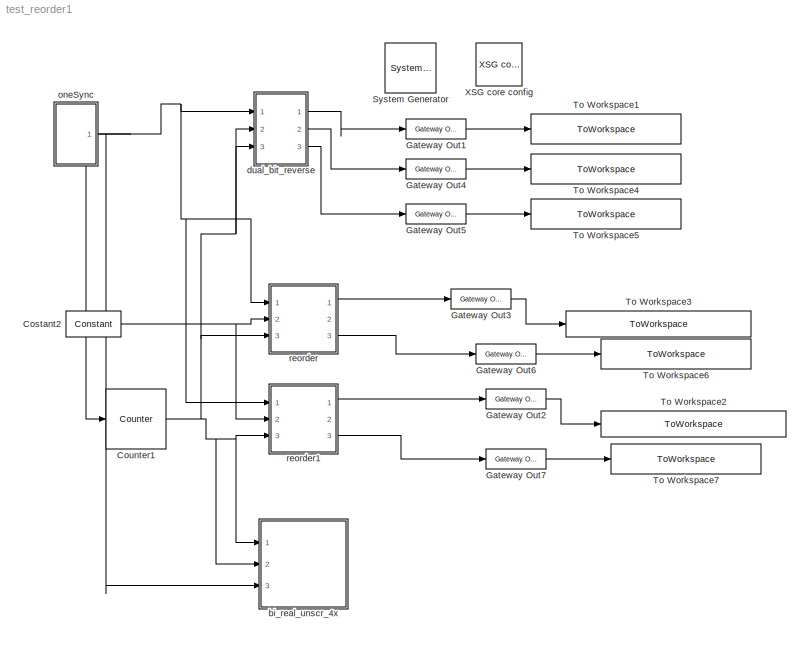
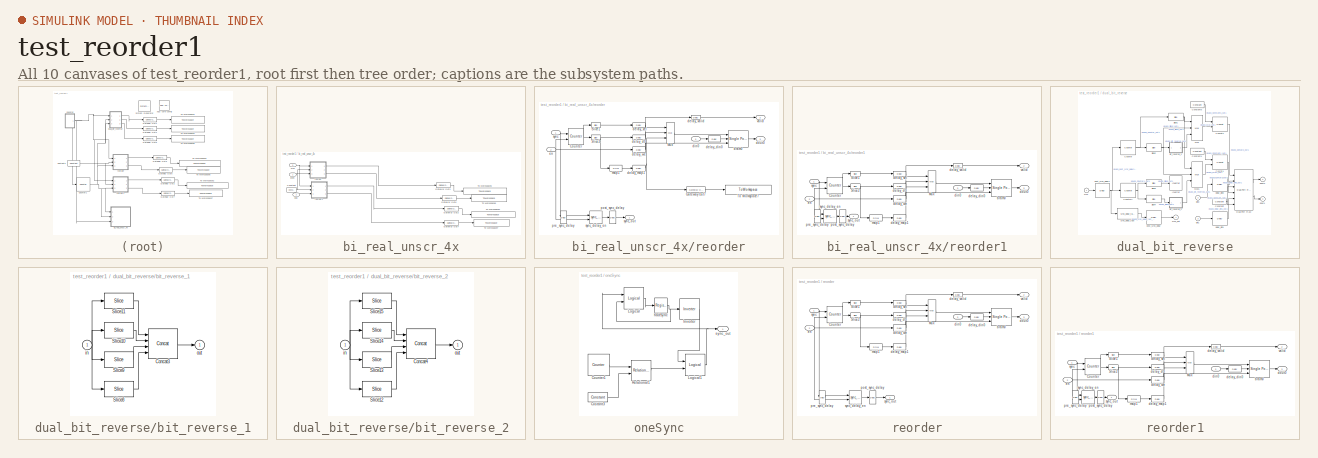
[diagram: thumbnail index - all 10 canvases of the model, root first then tree order]
MODEL test_reorder1
KIND model
BLOCK [Reference]  System Generator  REF=xbsIndex_r4/ System Generator
  AttributesFormatString = System\\nGenerator
  FunctionWithSeparateData = off
  GeneratePreprocessorConditionals = off
  Ports = []
  RTWMemSecDataConstants = Inherit from model
  RTWMemSecDataInternal = Inherit from model
  RTWMemSecDataParameters = Inherit from model
  RTWMemSecFuncExecute = Inherit from model
  RTWMemSecFuncInitTerm = Inherit from model
  SID = 56
  ShowPortLabels = FromPortIcon
  SourceBlock = xbsIndex_r4/ System Generator
  SourceType = Xilinx System Generator Block
  SystemSampleTime = -1
  Tag = genX
  UserData = DataTag0
  UserDataPersistent = on
  block_type = sysgen
  block_version = 11.4
  clock_wrapper = Clock Enables
  core_generation = According to Block Masks
  dbl_ovrd = According to Block Masks
  dcm_input_clock_period = 100
  deprecated_control = off
  directory = ./spec_16in_extrabrams3/sysgen
  eval_field = 0
  has_advanced_control = 0
  incr_netlist = off
  infoedit = System Generator
  package = ff1136
  part = xc5vsx95t
  run_coregen = off
  sg_icon_stat = 51,50,0,0,token,white,0,58c5b5770fe5f7c311f53dbc6e73f0f6,right,,[ ],[ ]
  sg_mask_display = fprintf('','COMMENT: begin icon graphics');\npatch([0 51 51 0 0 ],[0 0 50 50 0 ],[1 1 1 ]);\npatch([1.6375 16.81 27.31 37.81 48.31 27.31 12.1375 1.6375 ],[36.655 36.655 47.155 36.655 47.155 47.155 47.155 36.655 ],[0.933333 0.203922 0.141176 ]);\npatch([12.1375 27.31 16.81 1.6375 12.1375 ],[26.155 26.155 36.655 36.655 26.155 ],[0.698039 0.0313725 0.219608 ]);\npatch([1.6375 16.81 27.31 12.1375 1.63...<+335ch>
  sggui_pos = -1,-1,-1,-1
  simulink_period = 1
  speed = -1
  synthesis_tool = XST
  sysclk_period = 2.6667
  testbench = off
  trim_vbits = Everywhere in SubSystem
  xilinxfamily = virtex5
BLOCK [Reference] Costant2  REF=xbsIndex_r4/Constant
  Ports = [0, 1]
  SID = 55
  SourceBlock = xbsIndex_r4/Constant
  SourceType = Xilinx Constant Block Block
  arith_type = Boolean
  bin_pt = 0
  block_type = constant
  block_version = 11.4
  carry = CIN
  const = 1
  dbl_ovrd = off
  dsp48_infoedit = The use of this block for DSP48 instructions is deprecated.  Please use the Opmode block.
  equ = P=C
  explicit_period = on
  has_advanced_control = 0
  inp1 = P
  inp2 = PCIN>>17
  n_bits = 32
  opr = +
  opselect = C
  period = 1
  sg_icon_stat = 55,26,0,1,white,blue,0,1c72b5be,right,,[ ],[ ]
  sg_mask_display = fprintf('','COMMENT: begin icon graphics');\npatch([0 55 55 0 0 ],[0 0 26 26 0 ],[0.77 0.82 0.91 ]);\nplot([0 55 55 0 0 ],[0 0 26 26 0 ]);\npatch([20.325 24.66 27.66 30.66 33.66 27.66 23.325 20.325 ],[16.33 16.33 19.33 16.33 19.33 19.33 19.33 16.33 ],[1 1 1 ]);\npatch([23.325 27.66 24.66 20.325 23.325 ],[13.33 13.33 16.33 16.33 13.33 ],[0.931 0.946 0.973 ]);\npatch([20.325 24.66 27.66 23.325 20.32...<+335ch>
  sggui_pos = -1,-1,-1,-1
BLOCK [Reference] Counter1  REF=xbsIndex_r4/Counter
  Ports = [1, 1]
  SID = 64
  SourceBlock = xbsIndex_r4/Counter
  SourceType = Xilinx Counter Block
  arith_type = Unsigned
  bin_pt = 0
  block_type = counter
  cnt_by_val = 1
  cnt_to = 1023
  cnt_type = Free Running
  dbl_ovrd = off
  en = off
  explicit_period = on
  has_advanced_control = 0
  implementation = Fabric
  infoedit = Hardware notes: Free running counters are the least expensive in hardware.  A count limited counter is implemented by combining a counter with a comparator.
  load_pin = off
  n_bits = 13
  operation = Up
  period = 1
  rst = on
  sg_icon_stat = 60,60,1,1,white,blue,0,803eba70,right,,[ ],[ ]
  sg_mask_display = fprintf('','COMMENT: begin icon graphics');\npatch([0 60 60 0 0 ],[0 0 60 60 0 ],[0.77 0.82 0.91 ]);\nplot([0 60 60 0 0 ],[0 0 60 60 0 ]);\npatch([12.2 23.76 31.76 39.76 47.76 31.76 20.2 12.2 ],[38.88 38.88 46.88 38.88 46.88 46.88 46.88 38.88 ],[1 1 1 ]);\npatch([20.2 31.76 23.76 12.2 20.2 ],[30.88 30.88 38.88 38.88 30.88 ],[0.931 0.946 0.973 ]);\npatch([12.2 23.76 31.76 20.2 12.2 ],[22.88 22.88 3...<+379ch>  <repeated x3 — deduplicated; at blocks: Counter1, Counter>
  sggui_pos = 19,25,419,748
  start_count = 0
  use_behavioral_HDL = off
  use_rpm = off
  xl_area = [0,0,0,0,0,0,0]
  xl_use_area = off
BLOCK [Reference] Gateway Out1  REF=xbsIndex_r4/Gateway Out
  LOCs = {}
  Ports = [1, 1]
  SID = 58
  SourceBlock = xbsIndex_r4/Gateway Out
  SourceType = Xilinx Gateway Out Block
  block_type = gatewayout
  block_version = 11.4
  has_advanced_control = 0
  hdl_port = on
  infoedit = Gateway out block.  Converts Xilinx fixed point inputs into ouputs of type Simulink integer, double, or fixed point.<br><br>Hardware notes:  In hardware these blocks become top level output ports or are discarded, depending on how they are configured.  <repeated x12 — deduplicated; at blocks: Gateway Out1, Gateway Out2, Gateway Out3, Gateway Out4, Gateway Out5, Gateway Out6, Gateway Out7>
  locs_specified = off
  sg_icon_stat = 60,20,1,1,white,yellow,0,cc31b7ac,right,,[ ],[ ]
  sg_mask_display = fprintf('','COMMENT: begin icon graphics');\npatch([0 60 60 0 0 ],[0 0 20 20 0 ],[0.95 0.93 0.65 ]);\nplot([0 60 60 0 0 ],[0 0 20 20 0 ]);\npatch([25.55 28.44 30.44 32.44 34.44 30.44 27.55 25.55 ],[12.22 12.22 14.22 12.22 14.22 14.22 14.22 12.22 ],[1 1 1 ]);\npatch([27.55 30.44 28.44 25.55 27.55 ],[10.22 10.22 12.22 12.22 10.22 ],[0.985 0.979 0.895 ]);\npatch([25.55 28.44 30.44 27.55 25.55 ],[8.22...<+399ch>  <repeated x12 — deduplicated; at blocks: Gateway Out1, Gateway Out2, Gateway Out3, Gateway Out4, Gateway Out5, Gateway Out6, Gateway Out7>
  sggui_pos = -1,-1,-1,-1
  timing_constraint = None
  xl_area = [0,0,0,0,0,0,0]
  xl_use_area = off
BLOCK [Reference] Gateway Out2  REF=xbsIndex_r4/Gateway Out
  LOCs = {}
  Ports = [1, 1]
  SID = 60
  SourceBlock = xbsIndex_r4/Gateway Out
  SourceType = Xilinx Gateway Out Block
  block_type = gatewayout
  block_version = 11.4
  has_advanced_control = 0
  hdl_port = on
  locs_specified = off
  sg_icon_stat = 60,20,1,1,white,yellow,0,cc31b7ac,right,,[ ],[ ]
  sggui_pos = -1,-1,-1,-1
  timing_constraint = None
  xl_area = [0,0,0,0,0,0,0]
  xl_use_area = off
BLOCK [Reference] Gateway Out3  REF=xbsIndex_r4/Gateway Out
  LOCs = {}
  Ports = [1, 1]
  SID = 62
  SourceBlock = xbsIndex_r4/Gateway Out
  SourceType = Xilinx Gateway Out Block
  block_type = gatewayout
  block_version = 11.4
  has_advanced_control = 0
  hdl_port = on
  locs_specified = off
  sg_icon_stat = 60,20,1,1,white,yellow,0,cc31b7ac,right,,[ ],[ ]
  sggui_pos = -1,-1,-1,-1
  timing_constraint = None
  xl_area = [0,0,0,0,0,0,0]
  xl_use_area = off
BLOCK [Reference] Gateway Out4  REF=xbsIndex_r4/Gateway Out
  LOCs = {}
  Ports = [1, 1]
  SID = 65
  SourceBlock = xbsIndex_r4/Gateway Out
  SourceType = Xilinx Gateway Out Block
  block_type = gatewayout
  block_version = 11.4
  has_advanced_control = 0
  hdl_port = on
  locs_specified = off
  sg_icon_stat = 60,20,1,1,white,yellow,0,cc31b7ac,right,,[ ],[ ]
  sggui_pos = -1,-1,-1,-1
  timing_constraint = None
  xl_area = [0,0,0,0,0,0,0]
  xl_use_area = off
BLOCK [Reference] Gateway Out5  REF=xbsIndex_r4/Gateway Out
  LOCs = {}
  Ports = [1, 1]
  SID = 67
  SourceBlock = xbsIndex_r4/Gateway Out
  SourceType = Xilinx Gateway Out Block
  block_type = gatewayout
  block_version = 11.4
  has_advanced_control = 0
  hdl_port = on
  locs_specified = off
  sg_icon_stat = 60,20,1,1,white,yellow,0,cc31b7ac,right,,[ ],[ ]
  sggui_pos = -1,-1,-1,-1
  timing_constraint = None
  xl_area = [0,0,0,0,0,0,0]
  xl_use_area = off
BLOCK [Reference] Gateway Out6  REF=xbsIndex_r4/Gateway Out
  LOCs = {}
  Ports = [1, 1]
  SID = 69
  SourceBlock = xbsIndex_r4/Gateway Out
  SourceType = Xilinx Gateway Out Block
  block_type = gatewayout
  block_version = 11.4
  has_advanced_control = 0
  hdl_port = on
  locs_specified = off
  sg_icon_stat = 60,20,1,1,white,yellow,0,cc31b7ac,right,,[ ],[ ]
  sggui_pos = -1,-1,-1,-1
  timing_constraint = None
  xl_area = [0,0,0,0,0,0,0]
  xl_use_area = off
BLOCK [Reference] Gateway Out7  REF=xbsIndex_r4/Gateway Out
  LOCs = {}
  Ports = [1, 1]
  SID = 71
  SourceBlock = xbsIndex_r4/Gateway Out
  SourceType = Xilinx Gateway Out Block
  block_type = gatewayout
  block_version = 11.4
  has_advanced_control = 0
  hdl_port = on
  locs_specified = off
  sg_icon_stat = 60,20,1,1,white,yellow,0,cc31b7ac,right,,[ ],[ ]
  sggui_pos = -1,-1,-1,-1
  timing_constraint = None
  xl_area = [0,0,0,0,0,0,0]
  xl_use_area = off
BLOCK [ToWorkspace] To Workspace1
  MaxDataPoints = inf
  Ports = [1]
  SID = 59
  SampleTime = -1
  SaveFormat = Structure
  VariableName = sim1_sync_out
BLOCK [ToWorkspace] To Workspace2
  MaxDataPoints = inf
  Ports = [1]
  SID = 61
  SampleTime = -1
  SaveFormat = Structure
  VariableName = sim2_sync_out1
BLOCK [ToWorkspace] To Workspace3
  MaxDataPoints = inf
  Ports = [1]
  SID = 63
  SampleTime = -1
  SaveFormat = Structure
  VariableName = sim2_sync_out
BLOCK [ToWorkspace] To Workspace4
  MaxDataPoints = inf
  Ports = [1]
  SID = 66
  SampleTime = -1
  SaveFormat = Structure
  VariableName = sim1_data_out
BLOCK [ToWorkspace] To Workspace5
  MaxDataPoints = inf
  Ports = [1]
  SID = 68
  SampleTime = -1
  SaveFormat = Structure
  VariableName = sim1_data_out1
BLOCK [ToWorkspace] To Workspace6
  MaxDataPoints = inf
  Ports = [1]
  SID = 70
  SampleTime = -1
  SaveFormat = Structure
  VariableName = sim2_data_out
BLOCK [ToWorkspace] To Workspace7
  MaxDataPoints = inf
  Ports = [1]
  SID = 72
  SampleTime = -1
  SaveFormat = Structure
  VariableName = sim2_data_out1
BLOCK [Reference] XSG core config  REF=xps_library/XSG core config  (lib defined in mdl_00b5cec29cd0, mdl_02ab6ecaa3d1, +5 more)
  BEE2_ctrl_clk_src = sys_clk
  BEE2_usr_clk_src = sys_clk
  CORR_clk_src = sys_clk
  FunctionWithSeparateData = off
  GeneratePreprocessorConditionals = off
  Ports = []
  ROACH_clk_src = adc0_clk
  RTWMemSecDataConstants = Inherit from model
  RTWMemSecDataInternal = Inherit from model
  RTWMemSecDataParameters = Inherit from model
  RTWMemSecFuncExecute = Inherit from model
  RTWMemSecFuncInitTerm = Inherit from model
  SID = 57
  ShowPortLabels = FromPortIcon
  SourceBlock = xps_library/XSG core config
  SourceType = xsg core config
  SystemSampleTime = -1
  Tag = xps:xsg
  clk_rate = 375
  clk_src = adc0_clk
  gpio_clk_bit_index = 0
  gpio_clk_io_group = iBOB:sma
  hw_sys = ROACH:sx95t
  iBOB_clk_src = sys_clk
  ibob_linux = off
  mpc_type = powerpc440_ext
  sample_period = 1
  synthesis_tool = XST
BLOCK [SubSystem] bi_real_unscr_4x
  FunctionWithSeparateData = off
  MaskCallbackString = ||
  MaskEnableString = on,on,on
  MaskHideContents = off
  MaskIconFrame = on
  MaskIconOpaque = on
  MaskIconRotate = none
  MaskIconUnits = autoscale
  MaskInitialization = blk = gcb;\nif same_state(blk, 'FFTSize', FFTSize, 'bram_latency', bram_latency), return, end\nset_param([blk,'/reorder'],'map', mat2str(bit_reverse(0:2^(FFTSize-1)-1, FFTSize-1)));\nset_param([blk,'/reorder'],'bram_latency', num2str(bram_latency));\nsave_state(blk, 'FFTSize', FFTSize, 'bram_latency', bram_latency);
  MaskPortRotate = default
  MaskPromptString = Size of FFT (2^?):|BRAM Latency|Input Bit Width
  MaskStyleString = edit,edit,edit
  MaskToolTipString = on,on,on
  MaskTunableValueString = on,on,on
  MaskValueString = 5|3|18
  MaskVariables = FFTSize=@1;bram_latency=@2;input_bit_width=@3;
  MaskVisibilityString = on,on,on
  MinAlgLoopOccurrences = off
  Opaque = off
  Ports = [3]
  PropExecContextOutsideSubsystem = off
  RTWSystemCode = Auto
  RequestExecContextInheritance = off
  SID = 73
  UserData = DataTag1
  UserDataPersistent = on
BLOCK [Reference] bi_real_unscr_4x/Constant  REF=xbsIndex_r4/Constant
  Ports = [0, 1]
  SID = 77
  SourceBlock = xbsIndex_r4/Constant
  SourceType = Xilinx Constant Block Block
  arith_type = Boolean
  bin_pt = 0
  block_type = constant
  block_version = 9.1.01
  carry = CIN
  const = 1
  dbl_ovrd = off
  dsp48_infoedit = The use of this block for DSP48 instructions is deprecated.  Please use the Opmode block.
  equ = P=C
  explicit_period = on
  has_advanced_control = 0
  inp1 = P
  inp2 = PCIN>>17
  n_bits = 1
  opr = +
  opselect = C
  period = 1
  sg_icon_stat = 40,20,0,1,white,blue,0,1c72b5be,right,,[ ],[ ]
  sg_mask_display = fprintf('','COMMENT: begin icon graphics');\npatch([0 40 40 0 0 ],[0 0 20 20 0 ],[0.77 0.82 0.91 ]);\nplot([0 40 40 0 0 ],[0 0 20 20 0 ]);\npatch([15.55 18.44 20.44 22.44 24.44 20.44 17.55 15.55 ],[12.22 12.22 14.22 12.22 14.22 14.22 14.22 12.22 ],[1 1 1 ]);\npatch([17.55 20.44 18.44 15.55 17.55 ],[10.22 10.22 12.22 12.22 10.22 ],[0.931 0.946 0.973 ]);\npatch([15.55 18.44 20.44 17.55 15.55 ],[8.22...<+317ch>
  sggui_pos = -1,-1,-1,-1
BLOCK [Reference] bi_real_unscr_4x/Gateway Out2  REF=xbsIndex_r4/Gateway Out
  LOCs = {}
  Ports = [1, 1]
  SID = 426
  SourceBlock = xbsIndex_r4/Gateway Out
  SourceType = Xilinx Gateway Out Block
  block_type = gatewayout
  block_version = 11.4
  has_advanced_control = 0
  hdl_port = on
  locs_specified = off
  sg_icon_stat = 60,20,1,1,white,yellow,0,cc31b7ac,right,,[ ],[ ]
  sggui_pos = -1,-1,-1,-1
  timing_constraint = None
  xl_area = [0,0,0,0,0,0,0]
  xl_use_area = off
BLOCK [Reference] bi_real_unscr_4x/Gateway Out3  REF=xbsIndex_r4/Gateway Out
  LOCs = {}
  Ports = [1, 1]
  SID = 427
  SourceBlock = xbsIndex_r4/Gateway Out
  SourceType = Xilinx Gateway Out Block
  block_type = gatewayout
  block_version = 11.4
  has_advanced_control = 0
  hdl_port = on
  locs_specified = off
  sg_icon_stat = 60,20,1,1,white,yellow,0,cc31b7ac,right,,[ ],[ ]
  sggui_pos = -1,-1,-1,-1
  timing_constraint = None
  xl_area = [0,0,0,0,0,0,0]
  xl_use_area = off
BLOCK [Reference] bi_real_unscr_4x/Gateway Out6  REF=xbsIndex_r4/Gateway Out
  LOCs = {}
  Ports = [1, 1]
  SID = 428
  SourceBlock = xbsIndex_r4/Gateway Out
  SourceType = Xilinx Gateway Out Block
  block_type = gatewayout
  block_version = 11.4
  has_advanced_control = 0
  hdl_port = on
  locs_specified = off
  sg_icon_stat = 60,20,1,1,white,yellow,0,cc31b7ac,right,,[ ],[ ]
  sggui_pos = -1,-1,-1,-1
  timing_constraint = None
  xl_area = [0,0,0,0,0,0,0]
  xl_use_area = off
BLOCK [Reference] bi_real_unscr_4x/Gateway Out7  REF=xbsIndex_r4/Gateway Out
  LOCs = {}
  Ports = [1, 1]
  SID = 429
  SourceBlock = xbsIndex_r4/Gateway Out
  SourceType = Xilinx Gateway Out Block
  block_type = gatewayout
  block_version = 11.4
  has_advanced_control = 0
  hdl_port = on
  locs_specified = off
  sg_icon_stat = 60,20,1,1,white,yellow,0,cc31b7ac,right,,[ ],[ ]
  sggui_pos = -1,-1,-1,-1
  timing_constraint = None
  xl_area = [0,0,0,0,0,0,0]
  xl_use_area = off
BLOCK [ToWorkspace] bi_real_unscr_4x/To Workspace2
  MaxDataPoints = inf
  Ports = [1]
  SID = 430
  SampleTime = -1
  SaveFormat = Structure
  VariableName = sim2_sync_out2
BLOCK [ToWorkspace] bi_real_unscr_4x/To Workspace3
  MaxDataPoints = inf
  Ports = [1]
  SID = 431
  SampleTime = -1
  SaveFormat = Structure
  VariableName = sim2_sync_out3
BLOCK [ToWorkspace] bi_real_unscr_4x/To Workspace6
  MaxDataPoints = inf
  Ports = [1]
  SID = 432
  SampleTime = -1
  SaveFormat = Structure
  VariableName = sim2_data_out2
BLOCK [ToWorkspace] bi_real_unscr_4x/To Workspace7
  MaxDataPoints = inf
  Ports = [1]
  SID = 433
  SampleTime = -1
  SaveFormat = Structure
  VariableName = sim2_data_out3
BLOCK [Inport] bi_real_unscr_4x/even
  IconDisplay = Port number
  SID = 74
BLOCK [Inport] bi_real_unscr_4x/odd
  IconDisplay = Port number
  Port = 2
  SID = 75
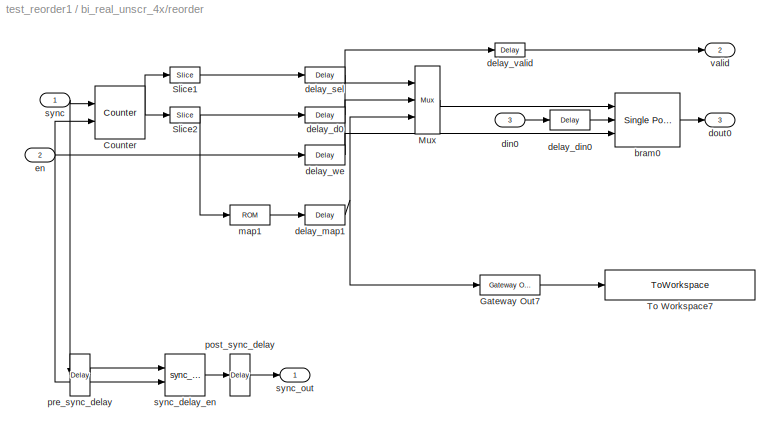
BLOCK [SubSystem] bi_real_unscr_4x/reorder
  AncestorBlock = casper_library/Reorder/reorder
  AttributesFormatString = order=2
  FunctionWithSeparateData = off
  MaskCallbackString = ||||
  MaskEnableString = on,on,on,on,on
  MaskHideContents = off
  MaskIconFrame = on
  MaskIconOpaque = on
  MaskIconRotate = none
  MaskIconUnits = autoscale
  MaskInitialization = reorder_init(gcb, ...\n    'map', map, ...\n    'n_inputs', n_inputs, ...\n    'bram_latency', bram_latency, ...\n    'map_latency', map_latency, ...\n    'double_buffer', double_buffer);  <repeated x4 — deduplicated; at blocks: reorder, reorder1>
  MaskPortRotate = default
  MaskPromptString = Output Order:|Number of inputs|BRAM Latency|Map Latency|Double Buffer
  MaskSelfModifiable = on
  MaskStyleString = edit,edit,edit,edit,edit
  MaskToolTipString = on,on,on,on,on
  MaskTunableValueString = on,on,on,on,on
  MaskType = reorder
  MaskValueString = getfield( getfield( get_param( gcb,'UserData' ), 'parameters'),'map')|1|3|0|0
  MaskVariables = map=@1;n_inputs=@2;bram_latency=@3;map_latency=@4;double_buffer=@5;
  MaskVisibilityString = on,on,on,on,on
  MinAlgLoopOccurrences = off
  Opaque = off
  Ports = [3, 3]
  PropExecContextOutsideSubsystem = off
  RTWSystemCode = Auto
  RequestExecContextInheritance = off
  SID = 417
  UserData = DataTag2
  UserDataPersistent = on
BLOCK [Reference] bi_real_unscr_4x/reorder/Counter  REF=xbsIndex_r4/Counter
  Ports = [2, 1]
  SID = 417:3065
  SourceBlock = xbsIndex_r4/Counter
  SourceType = Xilinx Counter Block
  arith_type = Unsigned
  bin_pt = 0
  block_type = counter
  block_version = 10.1.3
  cnt_by_val = 1
  cnt_to = 31
  cnt_type = Count Limited
  dbl_ovrd = off
  en = on
  explicit_period = on
  has_advanced_control = 0
  implementation = Fabric
  infoedit = Hardware notes: Free running counters are the least expensive in hardware.  A count limited counter is implemented by combining a counter with a comparator.
  load_pin = off
  n_bits = 5
  operation = Up
  period = 1
  rst = on
  sg_icon_stat = 50,53,2,1,white,blue,0,131a2a7a,right,,[ ],[ ]
  sg_mask_display = fprintf('','COMMENT: begin icon graphics');\npatch([0 50 50 0 0 ],[0 0 53 53 0 ],[0.77 0.82 0.91 ]);\nplot([0 50 50 0 0 ],[0 0 53 53 0 ]);\npatch([9.425 19.54 26.54 33.54 40.54 26.54 16.425 9.425 ],[33.77 33.77 40.77 33.77 40.77 40.77 40.77 33.77 ],[1 1 1 ]);\npatch([16.425 26.54 19.54 9.425 16.425 ],[26.77 26.77 33.77 33.77 26.77 ],[0.931 0.946 0.973 ]);\npatch([9.425 19.54 26.54 16.425 9.425 ],[...<+457ch>  <repeated x4 — deduplicated; at blocks: Counter>
  sggui_pos = -1,-1,-1,-1
  start_count = 0
  use_behavioral_HDL = off
  use_rpm = off
  xl_area = [0,0,0,0,0,0,0]
  xl_use_area = off
BLOCK [Reference] bi_real_unscr_4x/reorder/Gateway Out7  REF=xbsIndex_r4/Gateway Out
  LOCs = {}
  Ports = [1, 1]
  SID = 417:3083
  SourceBlock = xbsIndex_r4/Gateway Out
  SourceType = Xilinx Gateway Out Block
  block_type = gatewayout
  block_version = 11.4
  has_advanced_control = 0
  hdl_port = on
  locs_specified = off
  sg_icon_stat = 60,20,1,1,white,yellow,0,cc31b7ac,right,,[ ],[ ]
  sggui_pos = -1,-1,-1,-1
  timing_constraint = None
  xl_area = [0,0,0,0,0,0,0]
  xl_use_area = off
BLOCK [Reference] bi_real_unscr_4x/reorder/Mux  REF=xbsIndex_r4/Mux
  Ports = [3, 1]
  SID = 417:3066
  SourceBlock = xbsIndex_r4/Mux
  SourceType = Xilinx Bus Multiplexer Block
  arith_type = Unsigned
  bin_pt = 14
  block_type = mux
  block_version = 10.1.3
  dbl_ovrd = off
  en = off
  has_advanced_control = 0
  inputs = 2
  latency = 1
  n_bits = 16
  overflow = Wrap
  precision = Full
  quantization = Truncate
  sg_icon_stat = 25,68,3,1,white,blue,3,a150fb03,right,,[ ],[ ]
  sg_mask_display = fprintf('','COMMENT: begin icon graphics');\npatch([0 25 25 0 0 ],[0 9.71429 58.2857 68 0 ],[0.77 0.82 0.91 ]);\nplot([0 25 25 0 0 ],[0 9.71429 58.2857 68 0 ]);\npatch([5.325 9.66 12.66 15.66 18.66 12.66 8.325 5.325 ],[37.33 37.33 40.33 37.33 40.33 40.33 40.33 37.33 ],[1 1 1 ]);\npatch([8.325 12.66 9.66 5.325 8.325 ],[34.33 34.33 37.33 37.33 34.33 ],[0.931 0.946 0.973 ]);\npatch([5.325 9.66 12.66 ...<+491ch>  <repeated x4 — deduplicated; at blocks: Mux>
  sggui_pos = -1,-1,-1,-1
  xl_area = [0,0,0,0,0,0,0]
  xl_use_area = off
BLOCK [Reference] bi_real_unscr_4x/reorder/Slice1  REF=xbsIndex_r4/Slice
  Ports = [1, 1]
  SID = 417:3067
  SourceBlock = xbsIndex_r4/Slice
  SourceType = Xilinx Bit Slice Extractor Block
  base0 = LSB of Input
  base1 = MSB of Input
  bit0 = 0
  bit1 = 0
  block_type = slice
  block_version = 10.1.3
  boolean_output = off
  dbl_ovrd = off
  has_advanced_control = 0
  infoedit = Extracts a given range of bits from each input sample and presents it at the output.  The output type is ordinarily unsigned with binary point at zero, but can be Boolean when the slice is one bit wide.<P><P>Hardware notes: In hardware this block costs nothing.  <repeated x8 — deduplicated; at blocks: Slice1, Slice2>
  mode = Upper Bit Location + Width
  nbits = 1
  sg_icon_stat = 30,16,1,1,white,blue,0,1fd851a7,right,,[ ],[ ]
  sg_mask_display = fprintf('','COMMENT: begin icon graphics');\npatch([0 30 30 0 0 ],[0 0 16 16 0 ],[0.77 0.82 0.91 ]);\nplot([0 30 30 0 0 ],[0 0 16 16 0 ]);\npatch([10.55 13.44 15.44 17.44 19.44 15.44 12.55 10.55 ],[10.22 10.22 12.22 10.22 12.22 12.22 12.22 10.22 ],[1 1 1 ]);\npatch([12.55 15.44 13.44 10.55 12.55 ],[8.22 8.22 10.22 10.22 8.22 ],[0.931 0.946 0.973 ]);\npatch([10.55 13.44 15.44 12.55 10.55 ],[6.22 6....<+318ch>  <repeated x8 — deduplicated; at blocks: Slice1, Slice2>
  sggui_pos = -1,-1,-1,-1
BLOCK [Reference] bi_real_unscr_4x/reorder/Slice2  REF=xbsIndex_r4/Slice
  Ports = [1, 1]
  SID = 417:3068
  SourceBlock = xbsIndex_r4/Slice
  SourceType = Xilinx Bit Slice Extractor Block
  base0 = LSB of Input
  base1 = MSB of Input
  bit0 = 0
  bit1 = 0
  block_type = slice
  block_version = 10.1.3
  boolean_output = off
  dbl_ovrd = off
  has_advanced_control = 0
  mode = Lower Bit Location + Width
  nbits = 4
  sg_icon_stat = 30,16,1,1,white,blue,0,1fd851a7,right,,[ ],[ ]
  sggui_pos = -1,-1,-1,-1
BLOCK [ToWorkspace] bi_real_unscr_4x/reorder/To Workspace7
  MaxDataPoints = inf
  Ports = [1]
  SID = 417:3084
  SampleTime = -1
  SaveFormat = Structure
  VariableName = sim2_data_out4
BLOCK [Reference] bi_real_unscr_4x/reorder/bram0  REF=xbsIndex_r4/Single Port RAM
  Ports = [3, 1]
  SID = 417:3069
  SourceBlock = xbsIndex_r4/Single Port RAM
  SourceType = Xilinx Single Port Random Access Memory Block
  block_type = spram
  block_version = 10.1.3
  dbl_ovrd = off
  depth = 16
  distributed_mem = Block RAM
  en = off
  has_advanced_control = 0
  initVector = sin(pi*(0:15)/16)
  init_reg = 0
  latency = 3
  optimize = Area
  rst = off
  sg_icon_stat = 65,54,3,1,white,blue,0,0b4315b4,right,,[ ],[ ]
  sg_mask_display = fprintf('','COMMENT: begin icon graphics');\npatch([0 65 65 0 0 ],[0 0 54 54 0 ],[0.77 0.82 0.91 ]);\nplot([0 65 65 0 0 ],[0 0 54 54 0 ]);\npatch([16.425 26.54 33.54 40.54 47.54 33.54 23.425 16.425 ],[34.77 34.77 41.77 34.77 41.77 41.77 41.77 34.77 ],[1 1 1 ]);\npatch([23.425 33.54 26.54 16.425 23.425 ],[27.77 27.77 34.77 34.77 27.77 ],[0.931 0.946 0.973 ]);\npatch([16.425 26.54 33.54 23.425 16.42...<+478ch>  <repeated x4 — deduplicated; at blocks: bram0>
  sggui_pos = -1,-1,-1,-1
  use_rpm = on
  write_mode = Read Before Write
  xl_area = [0,0,0,0,0,0,0]
  xl_use_area = off
BLOCK [Reference] bi_real_unscr_4x/reorder/delay_d0  REF=xbsIndex_r4/Delay
  Ports = [1, 1]
  SID = 417:3070
  SourceBlock = xbsIndex_r4/Delay
  SourceType = Xilinx Delay Block
  block_type = delay
  block_version = 10.1.3
  dbl_ovrd = off
  en = off
  has_advanced_control = 0
  infoedit = Hardware notes: A delay line is a chain, each link of which is an SRL16 followed by a flip-flop.
  latency = 0
  reg_retiming = off
  sg_icon_stat = 40,16,1,1,white,blue,0,24450e6f,right,,[ ],[ ]
  sg_mask_display = fprintf('','COMMENT: begin icon graphics');\npatch([0 40 40 0 0 ],[0 0 16 16 0 ],[0.77 0.82 0.91 ]);\nplot([0 40 40 0 0 ],[0 0 16 16 0 ]);\npatch([15.55 18.44 20.44 22.44 24.44 20.44 17.55 15.55 ],[10.22 10.22 12.22 10.22 12.22 12.22 12.22 10.22 ],[1 1 1 ]);\npatch([17.55 20.44 18.44 15.55 17.55 ],[8.22 8.22 10.22 10.22 8.22 ],[0.931 0.946 0.973 ]);\npatch([15.55 18.44 20.44 17.55 15.55 ],[6.22 6....<+319ch>  <repeated x8 — deduplicated; at blocks: delay_d0, delay_sel>
  sggui_pos = -1,-1,-1,-1
  xl_area = [0,0,0,0,0,0,0]
  xl_use_area = off
BLOCK [Reference] bi_real_unscr_4x/reorder/delay_din0  REF=xbsIndex_r4/Delay
  Ports = [1, 1]
  SID = 417:3071
  SourceBlock = xbsIndex_r4/Delay
  SourceType = Xilinx Delay Block
  block_type = delay
  block_version = 9.1.01
  dbl_ovrd = off
  en = off
  has_advanced_control = 0
  infoedit = Hardware notes: A delay line is a chain, each link of which is an SRL16 followed by a flip-flop.
  latency = 1
  reg_retiming = off
  sg_icon_stat = 40,20,1,1,white,blue,0,07b98262,right,,[ ],[ ]
  sg_mask_display = fprintf('','COMMENT: begin icon graphics');\npatch([0 40 40 0 0 ],[0 0 20 20 0 ],[0.77 0.82 0.91 ]);\nplot([0 40 40 0 0 ],[0 0 20 20 0 ]);\npatch([15.55 18.44 20.44 22.44 24.44 20.44 17.55 15.55 ],[12.22 12.22 14.22 12.22 14.22 14.22 14.22 12.22 ],[1 1 1 ]);\npatch([17.55 20.44 18.44 15.55 17.55 ],[10.22 10.22 12.22 12.22 10.22 ],[0.931 0.946 0.973 ]);\npatch([15.55 18.44 20.44 17.55 15.55 ],[8.22...<+324ch>  <repeated x12 — deduplicated; at blocks: delay_din0, delay_map1, delay_we>
  sggui_pos = -1,-1,-1,-1
  xl_area = [0, 0, 0, 0, 0, 0, 0]
  xl_use_area = off
BLOCK [Reference] bi_real_unscr_4x/reorder/delay_map1  REF=xbsIndex_r4/Delay
  Ports = [1, 1]
  SID = 417:3072
  SourceBlock = xbsIndex_r4/Delay
  SourceType = Xilinx Delay Block
  block_type = delay
  block_version = 10.1.3
  dbl_ovrd = off
  en = off
  has_advanced_control = 0
  infoedit = Hardware notes: A delay line is a chain, each link of which is an SRL16 followed by a flip-flop.
  latency = 0*map_latency
  reg_retiming = off
  sg_icon_stat = 40,20,1,1,white,blue,0,24450e6f,right,,[ ],[ ]
  sggui_pos = -1,-1,-1,-1
  xl_area = [0,0,0,0,0,0,0]
  xl_use_area = off
BLOCK [Reference] bi_real_unscr_4x/reorder/delay_sel  REF=xbsIndex_r4/Delay
  Ports = [1, 1]
  SID = 417:3073
  SourceBlock = xbsIndex_r4/Delay
  SourceType = Xilinx Delay Block
  block_type = delay
  block_version = 10.1.3
  dbl_ovrd = off
  en = off
  has_advanced_control = 0
  infoedit = Hardware notes: A delay line is a chain, each link of which is an SRL16 followed by a flip-flop.
  latency = 0
  reg_retiming = off
  sg_icon_stat = 40,16,1,1,white,blue,0,24450e6f,right,,[ ],[ ]
  sggui_pos = -1,-1,-1,-1
  xl_area = [0,0,0,0,0,0,0]
  xl_use_area = off
BLOCK [Reference] bi_real_unscr_4x/reorder/delay_valid  REF=xbsIndex_r4/Delay
  Ports = [1, 1]
  SID = 417:3074
  SourceBlock = xbsIndex_r4/Delay
  SourceType = Xilinx Delay Block
  block_type = delay
  block_version = 9.1.01
  dbl_ovrd = off
  en = off
  has_advanced_control = 0
  infoedit = Hardware notes: A delay line is a chain, each link of which is an SRL16 followed by a flip-flop.
  latency = 4
  reg_retiming = off
  sg_icon_stat = 30,14,1,1,white,blue,0,d390c2d8,right,,[ ],[ ]
  sg_mask_display = fprintf('','COMMENT: begin icon graphics');\npatch([0 30 30 0 0 ],[0 0 14 14 0 ],[0.77 0.82 0.91 ]);\nplot([0 30 30 0 0 ],[0 0 14 14 0 ]);\npatch([10.55 13.44 15.44 17.44 19.44 15.44 12.55 10.55 ],[9.22 9.22 11.22 9.22 11.22 11.22 11.22 9.22 ],[1 1 1 ]);\npatch([12.55 15.44 13.44 10.55 12.55 ],[7.22 7.22 9.22 9.22 7.22 ],[0.931 0.946 0.973 ]);\npatch([10.55 13.44 15.44 12.55 10.55 ],[5.22 5.22 7.2...<+313ch>  <repeated x4 — deduplicated; at blocks: delay_valid>
  sggui_pos = -1,-1,-1,-1
  xl_area = [0, 0, 0, 0, 0, 0, 0]
  xl_use_area = off
BLOCK [Reference] bi_real_unscr_4x/reorder/delay_we  REF=xbsIndex_r4/Delay
  Ports = [1, 1]
  SID = 417:3075
  SourceBlock = xbsIndex_r4/Delay
  SourceType = Xilinx Delay Block
  block_type = delay
  block_version = 9.1.01
  dbl_ovrd = off
  en = off
  has_advanced_control = 0
  infoedit = Hardware notes: A delay line is a chain, each link of which is an SRL16 followed by a flip-flop.
  latency = 0
  reg_retiming = off
  sg_icon_stat = 40,20,1,1,white,blue,0,24450e6f,right,,[ ],[ ]
  sggui_pos = -1,-1,-1,-1
  xl_area = [0, 0, 0, 0, 0, 0, 0]
  xl_use_area = off
BLOCK [Inport] bi_real_unscr_4x/reorder/din0
  IconDisplay = Port number
  Port = 3
  SID = 417:3064
BLOCK [Outport] bi_real_unscr_4x/reorder/dout0
  IconDisplay = Port number
  Port = 3
  SID = 417:3082
BLOCK [Inport] bi_real_unscr_4x/reorder/en
  IconDisplay = Port number
  Port = 2
  SID = 417:3063
BLOCK [Reference] bi_real_unscr_4x/reorder/map1  REF=xbsIndex_r4/ROM
  Ports = [1, 1]
  SID = 417:3076
  SourceBlock = xbsIndex_r4/ROM
  SourceType = Xilinx Single Port Read-Only Memory Block
  arith_type = Unsigned
  bin_pt = 0
  block_type = sprom
  block_version = 10.1.3
  dbl_ovrd = off
  depth = 16
  distributed_mem = Distributed memory
  en = off
  has_advanced_control = 0
  initVector = map
  init_reg = 0
  latency = 0
  n_bits = 4
  optimize = Area
  rst = off
  sg_icon_stat = 40,20,1,1,white,blue,0,eff69a7e,right,,[ ],[ ]
  sg_mask_display = fprintf('','COMMENT: begin icon graphics');\npatch([0 40 40 0 0 ],[0 0 20 20 0 ],[0.77 0.82 0.91 ]);\nplot([0 40 40 0 0 ],[0 0 20 20 0 ]);\npatch([15.55 18.44 20.44 22.44 24.44 20.44 17.55 15.55 ],[12.22 12.22 14.22 12.22 14.22 14.22 14.22 12.22 ],[1 1 1 ]);\npatch([17.55 20.44 18.44 15.55 17.55 ],[10.22 10.22 12.22 12.22 10.22 ],[0.931 0.946 0.973 ]);\npatch([15.55 18.44 20.44 17.55 15.55 ],[8.22...<+321ch>  <repeated x4 — deduplicated; at blocks: map1>
  sggui_pos = -1,-1,-1,-1
  use_rpm = on
  xl_area = [0,0,0,0,0,0,0]
  xl_use_area = off
BLOCK [Reference] bi_real_unscr_4x/reorder/post_sync_delay  REF=xbsIndex_r4/Delay
  Ports = [1, 1]
  SID = 417:3077
  SourceBlock = xbsIndex_r4/Delay
  SourceType = Xilinx Delay Block
  block_type = delay
  block_version = 9.1.01
  dbl_ovrd = off
  en = off
  has_advanced_control = 0
  infoedit = Hardware notes: A delay line is a chain, each link of which is an SRL16 followed by a flip-flop.
  latency = 4
  reg_retiming = off
  sg_icon_stat = 20,42,1,1,white,blue,0,d390c2d8,right,,[ ],[ ]
  sg_mask_display = fprintf('','COMMENT: begin icon graphics');\npatch([0 20 20 0 0 ],[0 0 42 42 0 ],[0.77 0.82 0.91 ]);\nplot([0 20 20 0 0 ],[0 0 42 42 0 ]);\npatch([5.55 8.44 10.44 12.44 14.44 10.44 7.55 5.55 ],[23.22 23.22 25.22 23.22 25.22 25.22 25.22 23.22 ],[1 1 1 ]);\npatch([7.55 10.44 8.44 5.55 7.55 ],[21.22 21.22 23.22 23.22 21.22 ],[0.931 0.946 0.973 ]);\npatch([5.55 8.44 10.44 7.55 5.55 ],[19.22 19.22 21.2...<+318ch>  <repeated x8 — deduplicated; at blocks: post_sync_delay, pre_sync_delay>
  sggui_pos = -1,-1,-1,-1
  xl_area = [0, 0, 0, 0, 0, 0, 0]
  xl_use_area = off
BLOCK [Reference] bi_real_unscr_4x/reorder/pre_sync_delay  REF=xbsIndex_r4/Delay
  Ports = [1, 1]
  SID = 417:3078
  SourceBlock = xbsIndex_r4/Delay
  SourceType = Xilinx Delay Block
  block_type = delay
  block_version = 9.1.01
  dbl_ovrd = off
  en = off
  has_advanced_control = 0
  infoedit = Hardware notes: A delay line is a chain, each link of which is an SRL16 followed by a flip-flop.
  latency = 0
  reg_retiming = off
  sg_icon_stat = 20,42,1,1,white,blue,0,24450e6f,right,,[ ],[ ]
  sggui_pos = -1,-1,-1,-1
  xl_area = [0, 0, 0, 0, 0, 0, 0]
  xl_use_area = off
BLOCK [Inport] bi_real_unscr_4x/reorder/sync
  IconDisplay = Port number
  SID = 417:3062
BLOCK [Reference] bi_real_unscr_4x/reorder/sync_delay_en  REF=casper_library/Delays/sync_delay_en  (lib defined in mdl_138b2fc3435f, mdl_4ed325b712b3, +2 more)
  DelayLen = 16
  FunctionWithSeparateData = off
  GeneratePreprocessorConditionals = off
  Ports = [2, 1]
  RTWMemSecDataConstants = Inherit from model
  RTWMemSecDataInternal = Inherit from model
  RTWMemSecDataParameters = Inherit from model
  RTWMemSecFuncExecute = Inherit from model
  RTWMemSecFuncInitTerm = Inherit from model
  SID = 417:3079
  ShowPortLabels = FromPortIcon
  SourceBlock = casper_library/Delays/sync_delay_en
  SourceType = sync_delay_en
  SystemSampleTime = -1
BLOCK [Outport] bi_real_unscr_4x/reorder/sync_out
  IconDisplay = Port number
  SID = 417:3080
BLOCK [Outport] bi_real_unscr_4x/reorder/valid
  IconDisplay = Port number
  Port = 2
  SID = 417:3081
BLOCK [SubSystem] bi_real_unscr_4x/reorder1
  AncestorBlock = casper_library/Reorder/reorder
  AttributesFormatString = order=2
  FunctionWithSeparateData = off
  MaskCallbackString = ||||
  MaskEnableString = on,on,on,on,on
  MaskHideContents = off
  MaskIconFrame = on
  MaskIconOpaque = on
  MaskIconRotate = none
  MaskIconUnits = autoscale
  MaskPortRotate = default
  MaskPromptString = Output Order:|Number of inputs|BRAM Latency|Map Latency|Double Buffer
  MaskSelfModifiable = on
  MaskStyleString = edit,edit,edit,edit,edit
  MaskToolTipString = on,on,on,on,on
  MaskTunableValueString = on,on,on,on,on
  MaskType = reorder
  MaskValueString = getfield( getfield( get_param( gcb,'UserData' ), 'parameters'),'map')|1|3|0|0
  MaskVariables = map=@1;n_inputs=@2;bram_latency=@3;map_latency=@4;double_buffer=@5;
  MaskVisibilityString = on,on,on,on,on
  MinAlgLoopOccurrences = off
  Opaque = off
  Ports = [3, 3]
  PropExecContextOutsideSubsystem = off
  RTWSystemCode = Auto
  RequestExecContextInheritance = off
  SID = 418
  UserData = DataTag3
  UserDataPersistent = on
BLOCK [Reference] bi_real_unscr_4x/reorder1/Counter  REF=xbsIndex_r4/Counter
  Ports = [2, 1]
  SID = 418:3065
  SourceBlock = xbsIndex_r4/Counter
  SourceType = Xilinx Counter Block
  arith_type = Unsigned
  bin_pt = 0
  block_type = counter
  block_version = 9.1.01
  cnt_by_val = 1
  cnt_to = 31
  cnt_type = Count Limited
  dbl_ovrd = off
  en = on
  explicit_period = off
  has_advanced_control = 0
  implementation = Fabric
  infoedit = Hardware notes: Free running counters are the least expensive in hardware.  A count limited counter is implemented by combining a counter with a comparator.
  load_pin = off
  n_bits = 5
  operation = Up
  period = 1
  rst = on
  sg_icon_stat = 50,53,2,1,white,blue,0,131a2a7a,right,,[ ],[ ]
  sggui_pos = -1,-1,-1,-1
  start_count = 0
  use_behavioral_HDL = off
  use_rpm = on
  xl_area = [0, 0, 0, 0, 0, 0, 0]
  xl_use_area = off
BLOCK [Reference] bi_real_unscr_4x/reorder1/Mux  REF=xbsIndex_r4/Mux
  Ports = [3, 1]
  SID = 418:3066
  SourceBlock = xbsIndex_r4/Mux
  SourceType = Xilinx Bus Multiplexer Block
  arith_type = Signed  (2's comp)
  bin_pt = 2
  block_type = mux
  block_version = 9.1.01
  dbl_ovrd = off
  en = off
  has_advanced_control = 0
  inputs = 2
  latency = 1
  n_bits = 8
  overflow = Wrap
  precision = Full
  quantization = Truncate
  sg_icon_stat = 25,68,3,1,white,blue,3,a150fb03,right,,[ ],[ ]
  sggui_pos = -1,-1,-1,-1
  xl_area = [0, 0, 0, 0, 0, 0, 0]
  xl_use_area = off
BLOCK [Reference] bi_real_unscr_4x/reorder1/Slice1  REF=xbsIndex_r4/Slice
  Ports = [1, 1]
  SID = 418:3067
  SourceBlock = xbsIndex_r4/Slice
  SourceType = Xilinx Bit Slice Extractor Block
  base0 = LSB of Input
  base1 = MSB of Input
  bit0 = 0
  bit1 = 0
  block_type = slice
  block_version = 9.1.01
  boolean_output = off
  dbl_ovrd = off
  has_advanced_control = 0
  mode = Upper Bit Location + Width
  nbits = 1
  sg_icon_stat = 30,16,1,1,white,blue,0,1fd851a7,right,,[ ],[ ]
  sggui_pos = -1,-1,-1,-1
BLOCK [Reference] bi_real_unscr_4x/reorder1/Slice2  REF=xbsIndex_r4/Slice
  Ports = [1, 1]
  SID = 418:3068
  SourceBlock = xbsIndex_r4/Slice
  SourceType = Xilinx Bit Slice Extractor Block
  base0 = LSB of Input
  base1 = MSB of Input
  bit0 = 0
  bit1 = 0
  block_type = slice
  block_version = 9.1.01
  boolean_output = off
  dbl_ovrd = off
  has_advanced_control = 0
  mode = Lower Bit Location + Width
  nbits = 4
  sg_icon_stat = 30,16,1,1,white,blue,0,1fd851a7,right,,[ ],[ ]
  sggui_pos = -1,-1,-1,-1
BLOCK [Reference] bi_real_unscr_4x/reorder1/bram0  REF=xbsIndex_r4/Single Port RAM
  Ports = [3, 1]
  SID = 418:3069
  SourceBlock = xbsIndex_r4/Single Port RAM
  SourceType = Xilinx Single Port Random Access Memory Block
  block_type = spram
  block_version = 9.1.01
  dbl_ovrd = off
  depth = 16
  distributed_mem = Block RAM
  en = off
  has_advanced_control = 0
  initVector = sin(pi*(0:15)/16)
  init_reg = 0
  latency = 3
  optimize = Area
  rst = off
  sg_icon_stat = 65,54,3,1,white,blue,0,0b4315b4,right,,[ ],[ ]
  sggui_pos = -1,-1,-1,-1
  use_rpm = off
  write_mode = Read Before Write
  xl_area = [0, 0, 0, 0, 0, 0, 0]
  xl_use_area = off
BLOCK [Reference] bi_real_unscr_4x/reorder1/delay_d0  REF=xbsIndex_r4/Delay
  Ports = [1, 1]
  SID = 418:3070
  SourceBlock = xbsIndex_r4/Delay
  SourceType = Xilinx Delay Block
  block_type = delay
  block_version = 9.1.01
  dbl_ovrd = off
  en = off
  has_advanced_control = 0
  infoedit = Hardware notes: A delay line is a chain, each link of which is an SRL16 followed by a flip-flop.
  latency = 0
  reg_retiming = off
  sg_icon_stat = 40,16,1,1,white,blue,0,24450e6f,right,,[ ],[ ]
  sggui_pos = -1,-1,-1,-1
  xl_area = [0, 0, 0, 0, 0, 0, 0]
  xl_use_area = off
BLOCK [Reference] bi_real_unscr_4x/reorder1/delay_din0  REF=xbsIndex_r4/Delay
  Ports = [1, 1]
  SID = 418:3071
  SourceBlock = xbsIndex_r4/Delay
  SourceType = Xilinx Delay Block
  block_type = delay
  block_version = 9.1.01
  dbl_ovrd = off
  en = off
  has_advanced_control = 0
  infoedit = Hardware notes: A delay line is a chain, each link of which is an SRL16 followed by a flip-flop.
  latency = 1
  reg_retiming = off
  sg_icon_stat = 40,20,1,1,white,blue,0,07b98262,right,,[ ],[ ]
  sggui_pos = -1,-1,-1,-1
  xl_area = [0, 0, 0, 0, 0, 0, 0]
  xl_use_area = off
BLOCK [Reference] bi_real_unscr_4x/reorder1/delay_map1  REF=xbsIndex_r4/Delay
  Ports = [1, 1]
  SID = 418:3072
  SourceBlock = xbsIndex_r4/Delay
  SourceType = Xilinx Delay Block
  block_type = delay
  block_version = 9.1.01
  dbl_ovrd = off
  en = off
  has_advanced_control = 0
  infoedit = Hardware notes: A delay line is a chain, each link of which is an SRL16 followed by a flip-flop.
  latency = 0*map_latency
  reg_retiming = off
  sg_icon_stat = 40,20,1,1,white,blue,0,24450e6f,right,,[ ],[ ]
  sggui_pos = -1,-1,-1,-1
  xl_area = [0, 0, 0, 0, 0, 0, 0]
  xl_use_area = off
BLOCK [Reference] bi_real_unscr_4x/reorder1/delay_sel  REF=xbsIndex_r4/Delay
  Ports = [1, 1]
  SID = 418:3073
  SourceBlock = xbsIndex_r4/Delay
  SourceType = Xilinx Delay Block
  block_type = delay
  block_version = 9.1.01
  dbl_ovrd = off
  en = off
  has_advanced_control = 0
  infoedit = Hardware notes: A delay line is a chain, each link of which is an SRL16 followed by a flip-flop.
  latency = 0
  reg_retiming = off
  sg_icon_stat = 40,16,1,1,white,blue,0,24450e6f,right,,[ ],[ ]
  sggui_pos = -1,-1,-1,-1
  xl_area = [0, 0, 0, 0, 0, 0, 0]
  xl_use_area = off
BLOCK [Reference] bi_real_unscr_4x/reorder1/delay_valid  REF=xbsIndex_r4/Delay
  Ports = [1, 1]
  SID = 418:3074
  SourceBlock = xbsIndex_r4/Delay
  SourceType = Xilinx Delay Block
  block_type = delay
  block_version = 9.1.01
  dbl_ovrd = off
  en = off
  has_advanced_control = 0
  infoedit = Hardware notes: A delay line is a chain, each link of which is an SRL16 followed by a flip-flop.
  latency = 4
  reg_retiming = off
  sg_icon_stat = 30,14,1,1,white,blue,0,d390c2d8,right,,[ ],[ ]
  sggui_pos = -1,-1,-1,-1
  xl_area = [0, 0, 0, 0, 0, 0, 0]
  xl_use_area = off
BLOCK [Reference] bi_real_unscr_4x/reorder1/delay_we  REF=xbsIndex_r4/Delay
  Ports = [1, 1]
  SID = 418:3075
  SourceBlock = xbsIndex_r4/Delay
  SourceType = Xilinx Delay Block
  block_type = delay
  block_version = 9.1.01
  dbl_ovrd = off
  en = off
  has_advanced_control = 0
  infoedit = Hardware notes: A delay line is a chain, each link of which is an SRL16 followed by a flip-flop.
  latency = 0
  reg_retiming = off
  sg_icon_stat = 40,20,1,1,white,blue,0,24450e6f,right,,[ ],[ ]
  sggui_pos = -1,-1,-1,-1
  xl_area = [0, 0, 0, 0, 0, 0, 0]
  xl_use_area = off
BLOCK [Inport] bi_real_unscr_4x/reorder1/din0
  IconDisplay = Port number
  Port = 3
  SID = 418:3064
BLOCK [Outport] bi_real_unscr_4x/reorder1/dout0
  IconDisplay = Port number
  Port = 3
  SID = 418:3082
BLOCK [Inport] bi_real_unscr_4x/reorder1/en
  IconDisplay = Port number
  Port = 2
  SID = 418:3063
BLOCK [Reference] bi_real_unscr_4x/reorder1/map1  REF=xbsIndex_r4/ROM
  Ports = [1, 1]
  SID = 418:3076
  SourceBlock = xbsIndex_r4/ROM
  SourceType = Xilinx Single Port Read-Only Memory Block
  arith_type = Unsigned
  bin_pt = 0
  block_type = sprom
  block_version = 9.1.01
  dbl_ovrd = off
  depth = 16
  distributed_mem = Distributed memory
  en = off
  has_advanced_control = 0
  initVector = map
  init_reg = 0
  latency = 0
  n_bits = 4
  optimize = Area
  rst = off
  sg_icon_stat = 40,20,1,1,white,blue,0,eff69a7e,right,,[ ],[ ]
  sggui_pos = -1,-1,-1,-1
  use_rpm = off
  xl_area = [0, 0, 0, 0, 0, 0, 0]
  xl_use_area = off
BLOCK [Reference] bi_real_unscr_4x/reorder1/post_sync_delay  REF=xbsIndex_r4/Delay
  Ports = [1, 1]
  SID = 418:3077
  SourceBlock = xbsIndex_r4/Delay
  SourceType = Xilinx Delay Block
  block_type = delay
  block_version = 9.1.01
  dbl_ovrd = off
  en = off
  has_advanced_control = 0
  infoedit = Hardware notes: A delay line is a chain, each link of which is an SRL16 followed by a flip-flop.
  latency = 4
  reg_retiming = off
  sg_icon_stat = 20,42,1,1,white,blue,0,d390c2d8,right,,[ ],[ ]
  sggui_pos = -1,-1,-1,-1
  xl_area = [0, 0, 0, 0, 0, 0, 0]
  xl_use_area = off
BLOCK [Reference] bi_real_unscr_4x/reorder1/pre_sync_delay  REF=xbsIndex_r4/Delay
  Ports = [1, 1]
  SID = 418:3078
  SourceBlock = xbsIndex_r4/Delay
  SourceType = Xilinx Delay Block
  block_type = delay
  block_version = 9.1.01
  dbl_ovrd = off
  en = off
  has_advanced_control = 0
  infoedit = Hardware notes: A delay line is a chain, each link of which is an SRL16 followed by a flip-flop.
  latency = 0
  reg_retiming = off
  sg_icon_stat = 20,42,1,1,white,blue,0,24450e6f,right,,[ ],[ ]
  sggui_pos = -1,-1,-1,-1
  xl_area = [0, 0, 0, 0, 0, 0, 0]
  xl_use_area = off
BLOCK [Inport] bi_real_unscr_4x/reorder1/sync
  IconDisplay = Port number
  SID = 418:3062
BLOCK [Reference] bi_real_unscr_4x/reorder1/sync_delay_en  REF=casper_library/Delays/sync_delay_en  (lib defined in mdl_138b2fc3435f, mdl_4ed325b712b3, +2 more)
  DelayLen = 16
  FunctionWithSeparateData = off
  GeneratePreprocessorConditionals = off
  Ports = [2, 1]
  RTWMemSecDataConstants = Inherit from model
  RTWMemSecDataInternal = Inherit from model
  RTWMemSecDataParameters = Inherit from model
  RTWMemSecFuncExecute = Inherit from model
  RTWMemSecFuncInitTerm = Inherit from model
  SID = 418:3079
  ShowPortLabels = FromPortIcon
  SourceBlock = casper_library/Delays/sync_delay_en
  SourceType = sync_delay_en
  SystemSampleTime = -1
BLOCK [Outport] bi_real_unscr_4x/reorder1/sync_out
  IconDisplay = Port number
  SID = 418:3080
BLOCK [Outport] bi_real_unscr_4x/reorder1/valid
  IconDisplay = Port number
  Port = 2
  SID = 418:3081
BLOCK [Inport] bi_real_unscr_4x/sync
  IconDisplay = Port number
  Port = 3
  SID = 76
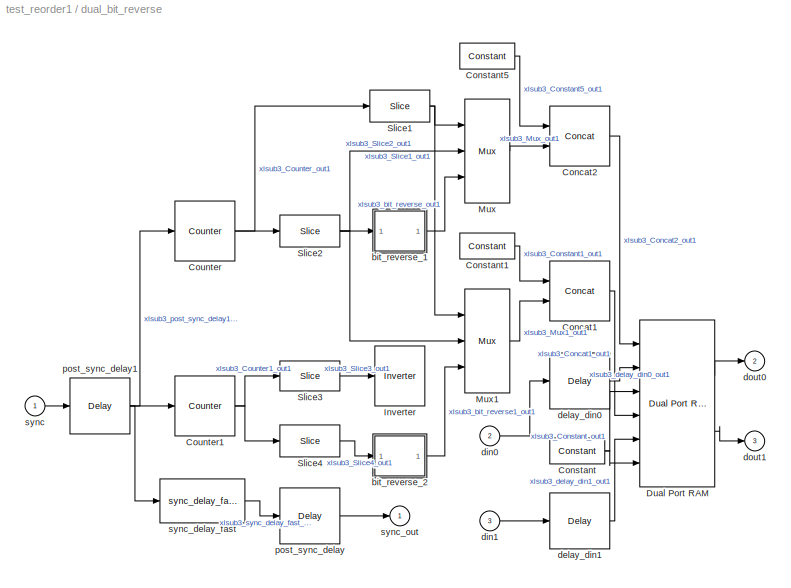
BLOCK [SubSystem] dual_bit_reverse
  FunctionWithSeparateData = off
  MaskHideContents = off
  MinAlgLoopOccurrences = off
  Opaque = off
  Ports = [3, 3]
  PropExecContextOutsideSubsystem = off
  RTWSystemCode = Auto
  RequestExecContextInheritance = off
  SID = 479
BLOCK [Reference] dual_bit_reverse/Concat1  REF=xbsIndex_r4/Concat
  Ports = [2, 1]
  SID = 483
  SourceBlock = xbsIndex_r4/Concat
  SourceType = Xilinx Bus Concatenator Block
  block_type = concat
  dbl_ovrd = off
  has_advanced_control = 0
  infoedit = Concatenates two or more inputs.  Output will be cast to an unsigned value with the binary point at zero.
  num_inputs = 2
  sg_icon_stat = 60,60,2,1,white,blue,0,16398980,right,,[ ],[ ]
  sg_mask_display = fprintf('','COMMENT: begin icon graphics');\npatch([0 60 60 0 0 ],[0 0 60 60 0 ],[0.77 0.82 0.91 ]);\nplot([0 60 60 0 0 ],[0 0 60 60 0 ]);\npatch([12.2 23.76 31.76 39.76 47.76 31.76 20.2 12.2 ],[38.88 38.88 46.88 38.88 46.88 46.88 46.88 38.88 ],[1 1 1 ]);\npatch([20.2 31.76 23.76 12.2 20.2 ],[30.88 30.88 38.88 38.88 30.88 ],[0.931 0.946 0.973 ]);\npatch([12.2 23.76 31.76 20.2 12.2 ],[22.88 22.88 3...<+417ch>
  sggui_pos = -1,-1,-1,-1
BLOCK [Reference] dual_bit_reverse/Concat2  REF=xbsIndex_r4/Concat
  Ports = [2, 1]
  SID = 484
  SourceBlock = xbsIndex_r4/Concat
  SourceType = Xilinx Bus Concatenator Block
  block_type = concat
  dbl_ovrd = off
  has_advanced_control = 0
  infoedit = Concatenates two or more inputs.  Output will be cast to an unsigned value with the binary point at zero.
  num_inputs = 2
  sg_icon_stat = 60,60,2,1,white,blue,0,16398980,right,,[ ],[ ]
  sg_mask_display = fprintf('','COMMENT: begin icon graphics');\npatch([0 60 60 0 0 ],[0 0 60 60 0 ],[0.77 0.82 0.91 ]);\nplot([0 60 60 0 0 ],[0 0 60 60 0 ]);\npatch([12.2 23.76 31.76 39.76 47.76 31.76 20.2 12.2 ],[38.88 38.88 46.88 38.88 46.88 46.88 46.88 38.88 ],[1 1 1 ]);\npatch([20.2 31.76 23.76 12.2 20.2 ],[30.88 30.88 38.88 38.88 30.88 ],[0.931 0.946 0.973 ]);\npatch([12.2 23.76 31.76 20.2 12.2 ],[22.88 22.88 3...<+417ch>
  sggui_pos = -1,-1,-1,-1
BLOCK [Reference] dual_bit_reverse/Constant  REF=xbsIndex_r4/Constant
  Ports = [0, 1]
  SID = 485
  SourceBlock = xbsIndex_r4/Constant
  SourceType = Xilinx Constant Block Block
  arith_type = Boolean
  bin_pt = 0
  block_type = constant
  carry = CIN
  const = 1
  dbl_ovrd = off
  dsp48_infoedit = The use of this block for DSP48 instructions is deprecated.  Please use the Opmode block.
  equ = P=C
  explicit_period = on
  has_advanced_control = 0
  inp1 = P
  inp2 = PCIN>>17
  n_bits = 1
  opr = +
  opselect = C
  period = 1
  sg_icon_stat = 55,26,0,1,white,blue,0,1c72b5be,right,,[ ],[ ]
  sg_mask_display = fprintf('','COMMENT: begin icon graphics');\npatch([0 55 55 0 0 ],[0 0 26 26 0 ],[0.77 0.82 0.91 ]);\nplot([0 55 55 0 0 ],[0 0 26 26 0 ]);\npatch([20.325 24.66 27.66 30.66 33.66 27.66 23.325 20.325 ],[16.33 16.33 19.33 16.33 19.33 19.33 19.33 16.33 ],[1 1 1 ]);\npatch([23.325 27.66 24.66 20.325 23.325 ],[13.33 13.33 16.33 16.33 13.33 ],[0.931 0.946 0.973 ]);\npatch([20.325 24.66 27.66 23.325 20.32...<+333ch>  <repeated x3 — deduplicated; at blocks: Constant, Constant1, Constant5>
  sggui_pos = -1,-1,-1,-1
BLOCK [Reference] dual_bit_reverse/Constant1  REF=xbsIndex_r4/Constant
  Ports = [0, 1]
  SID = 486
  SourceBlock = xbsIndex_r4/Constant
  SourceType = Xilinx Constant Block Block
  arith_type = Boolean
  bin_pt = 0
  block_type = constant
  carry = CIN
  const = 0
  dbl_ovrd = off
  dsp48_infoedit = The use of this block for DSP48 instructions is deprecated.  Please use the Opmode block.
  equ = P=C
  explicit_period = on
  has_advanced_control = 0
  inp1 = P
  inp2 = PCIN>>17
  n_bits = 1
  opr = +
  opselect = C
  period = 1
  sg_icon_stat = 55,26,0,1,white,blue,0,bf4ddd8b,right,,[ ],[ ]
  sggui_pos = -1,-1,-1,-1
BLOCK [Reference] dual_bit_reverse/Constant5  REF=xbsIndex_r4/Constant
  Ports = [0, 1]
  SID = 487
  SourceBlock = xbsIndex_r4/Constant
  SourceType = Xilinx Constant Block Block
  arith_type = Boolean
  bin_pt = 0
  block_type = constant
  carry = CIN
  const = 1
  dbl_ovrd = off
  dsp48_infoedit = The use of this block for DSP48 instructions is deprecated.  Please use the Opmode block.
  equ = P=C
  explicit_period = on
  has_advanced_control = 0
  inp1 = P
  inp2 = PCIN>>17
  n_bits = 1
  opr = +
  opselect = C
  period = 1
  sg_icon_stat = 55,26,0,1,white,blue,0,1c72b5be,right,,[ ],[ ]
  sggui_pos = -1,-1,-1,-1
BLOCK [Reference] dual_bit_reverse/Counter  REF=xbsIndex_r4/Counter
  Ports = [1, 1]
  SID = 488
  SourceBlock = xbsIndex_r4/Counter
  SourceType = Xilinx Counter Block
  arith_type = Unsigned
  bin_pt = 0
  block_type = counter
  cnt_by_val = 1
  cnt_to = 1023
  cnt_type = Free Running
  dbl_ovrd = off
  en = off
  explicit_period = on
  has_advanced_control = 0
  implementation = Fabric
  infoedit = Hardware notes: Free running counters are the least expensive in hardware.  A count limited counter is implemented by combining a counter with a comparator.
  load_pin = off
  n_bits = 5
  operation = Up
  period = 1
  rst = on
  sg_icon_stat = 60,60,1,1,white,blue,0,803eba70,right,,[ ],[ ]
  sggui_pos = -1,-1,-1,-1
  start_count = 0
  use_behavioral_HDL = off
  use_rpm = off
  xl_area = [0,0,0,0,0,0,0]
  xl_use_area = off
BLOCK [Reference] dual_bit_reverse/Counter1  REF=xbsIndex_r4/Counter
  Ports = [1, 1]
  SID = 489
  SourceBlock = xbsIndex_r4/Counter
  SourceType = Xilinx Counter Block
  arith_type = Unsigned
  bin_pt = 0
  block_type = counter
  cnt_by_val = 1
  cnt_to = 1023
  cnt_type = Free Running
  dbl_ovrd = off
  en = off
  explicit_period = on
  has_advanced_control = 0
  implementation = Fabric
  infoedit = Hardware notes: Free running counters are the least expensive in hardware.  A count limited counter is implemented by combining a counter with a comparator.
  load_pin = off
  n_bits = 5
  operation = Down
  period = 1
  rst = on
  sg_icon_stat = 60,60,1,1,white,blue,0,d47ba05d,right,,[ ],[ ]
  sggui_pos = -1,-1,-1,-1
  start_count = 31
  use_behavioral_HDL = off
  use_rpm = off
  xl_area = [0,0,0,0,0,0,0]
  xl_use_area = off
BLOCK [Reference] dual_bit_reverse/Dual Port RAM  REF=xbsIndex_r4/Dual Port RAM
  Ports = [6, 2]
  SID = 490
  SourceBlock = xbsIndex_r4/Dual Port RAM
  SourceType = Xilinx Dual Port Random Access Memory Block
  block_type = dpram
  dbl_ovrd = off
  depth = 32
  distributed_mem = Block RAM
  en_a = off
  en_b = off
  has_advanced_control = 0
  initVector = sin(pi*(0:15)/16)
  init_a = 0
  init_b = 0
  latency = 2
  optimize = Area
  rst_a = off
  rst_b = off
  sg_icon_stat = 75,167,6,2,white,blue,0,28af736d,right,,[ ],[ ]
  sg_mask_display = fprintf('','COMMENT: begin icon graphics');\npatch([0 75 75 0 0 ],[0 0 167 167 0 ],[0.77 0.82 0.91 ]);\nplot([0 75 75 0 0 ],[0 0 167 167 0 ]);\npatch([14.75 29.2 39.2 49.2 59.2 39.2 24.75 14.75 ],[94.1 94.1 104.1 94.1 104.1 104.1 104.1 94.1 ],[1 1 1 ]);\npatch([24.75 39.2 29.2 14.75 24.75 ],[84.1 84.1 94.1 94.1 84.1 ],[0.931 0.946 0.973 ]);\npatch([14.75 29.2 39.2 24.75 14.75 ],[74.1 74.1 84.1 84....<+615ch>
  sggui_pos = -1,-1,-1,-1
  use_rpm = on
  write_mode_A = Read Before Write
  write_mode_B = Read Before Write
  xl_area = [0,0,0,0,0,0,0]
  xl_use_area = off
BLOCK [Reference] dual_bit_reverse/Inverter  REF=xbsIndex_r4/Inverter
  Ports = [1, 1]
  SID = 491
  SourceBlock = xbsIndex_r4/Inverter
  SourceType = Xilinx Inverter Block
  block_type = inv
  dbl_ovrd = off
  en = off
  has_advanced_control = 0
  infoedit = Bitwise logical negation (one's complement) operator.
  latency = 0
  sg_icon_stat = 50,60,1,1,white,blue,0,267846e5,right,,[ ],[ ]
  sg_mask_display = fprintf('','COMMENT: begin icon graphics');\npatch([0 50 50 0 0 ],[0 0 60 60 0 ],[0.77 0.82 0.91 ]);\nplot([0 50 50 0 0 ],[0 0 60 60 0 ]);\npatch([9.425 19.54 26.54 33.54 40.54 26.54 16.425 9.425 ],[37.77 37.77 44.77 37.77 44.77 44.77 44.77 37.77 ],[1 1 1 ]);\npatch([16.425 26.54 19.54 9.425 16.425 ],[30.77 30.77 37.77 37.77 30.77 ],[0.931 0.946 0.973 ]);\npatch([9.425 19.54 26.54 16.425 9.425 ],[...<+320ch>
  sggui_pos = -1,-1,-1,-1
  xl_area = [0,0,0,0,0,0,0]
  xl_use_area = off
BLOCK [Reference] dual_bit_reverse/Mux  REF=xbsIndex_r4/Mux
  Ports = [3, 1]
  SID = 492
  SourceBlock = xbsIndex_r4/Mux
  SourceType = Xilinx Bus Multiplexer Block
  arith_type = Unsigned
  bin_pt = 14
  block_type = mux
  dbl_ovrd = off
  en = off
  has_advanced_control = 0
  inputs = 2
  latency = 0
  n_bits = 16
  overflow = Wrap
  precision = Full
  quantization = Truncate
  sg_icon_stat = 45,104,3,1,white,blue,3,eb98d690,right,,[ ],[ ]
  sg_mask_display = fprintf('','COMMENT: begin icon graphics');\npatch([0 45 45 0 0 ],[0 14.8571 89.1429 104 0 ],[0.77 0.82 0.91 ]);\nplot([0 45 45 0 0 ],[0 14.8571 89.1429 104 0 ]);\npatch([8.65 17.32 23.32 29.32 35.32 23.32 14.65 8.65 ],[58.66 58.66 64.66 58.66 64.66 64.66 64.66 58.66 ],[1 1 1 ]);\npatch([14.65 23.32 17.32 8.65 14.65 ],[52.66 52.66 58.66 58.66 52.66 ],[0.931 0.946 0.973 ]);\npatch([8.65 17.32 23.32...<+481ch>
  sggui_pos = -1,-1,-1,-1
  xl_area = [0,0,0,0,0,0,0]
  xl_use_area = off
BLOCK [Reference] dual_bit_reverse/Mux1  REF=xbsIndex_r4/Mux
  Ports = [3, 1]
  SID = 493
  SourceBlock = xbsIndex_r4/Mux
  SourceType = Xilinx Bus Multiplexer Block
  arith_type = Unsigned
  bin_pt = 14
  block_type = mux
  dbl_ovrd = off
  en = off
  has_advanced_control = 0
  inputs = 2
  latency = 0
  n_bits = 16
  overflow = Wrap
  precision = Full
  quantization = Truncate
  sg_icon_stat = 45,104,3,1,white,blue,3,eb98d690,right,,[ ],[ ]
  sg_mask_display = fprintf('','COMMENT: begin icon graphics');\npatch([0 45 45 0 0 ],[0 14.8571 89.1429 104 0 ],[0.77 0.82 0.91 ]);\nplot([0 45 45 0 0 ],[0 14.8571 89.1429 104 0 ]);\npatch([8.65 17.32 23.32 29.32 35.32 23.32 14.65 8.65 ],[58.66 58.66 64.66 58.66 64.66 64.66 64.66 58.66 ],[1 1 1 ]);\npatch([14.65 23.32 17.32 8.65 14.65 ],[52.66 52.66 58.66 58.66 52.66 ],[0.931 0.946 0.973 ]);\npatch([8.65 17.32 23.32...<+481ch>
  sggui_pos = -1,-1,-1,-1
  xl_area = [0,0,0,0,0,0,0]
  xl_use_area = off
BLOCK [Reference] dual_bit_reverse/Slice1  REF=xbsIndex_r4/Slice
  Ports = [1, 1]
  SID = 494
  SourceBlock = xbsIndex_r4/Slice
  SourceType = Xilinx Bit Slice Extractor Block
  base0 = LSB of Input
  base1 = MSB of Input
  bit0 = 0
  bit1 = 0
  block_type = slice
  boolean_output = off
  dbl_ovrd = off
  has_advanced_control = 0
  infoedit = Extracts a given range of bits from each input sample and presents it at the output.  The output type is ordinarily unsigned with binary point at zero, but can be Boolean when the slice is one bit wide.<br><br>Hardware notes: In hardware this block costs nothing.  <repeated x12 — deduplicated; at blocks: Slice1, Slice2, Slice3, Slice4, Slice10, Slice11, Slice8, Slice9, Slice12, Slice13, Slice14, Slice15>
  mode = Upper Bit Location + Width
  nbits = 1
  sg_icon_stat = 60,32,1,1,white,blue,0,1fd851a7,right,,[ ],[ ]
  sg_mask_display = fprintf('','COMMENT: begin icon graphics');\npatch([0 60 60 0 0 ],[0 0 32 32 0 ],[0.77 0.82 0.91 ]);\nplot([0 60 60 0 0 ],[0 0 32 32 0 ]);\npatch([21.1 26.88 30.88 34.88 38.88 30.88 25.1 21.1 ],[20.44 20.44 24.44 20.44 24.44 24.44 24.44 20.44 ],[1 1 1 ]);\npatch([25.1 30.88 26.88 21.1 25.1 ],[16.44 16.44 20.44 20.44 16.44 ],[0.931 0.946 0.973 ]);\npatch([21.1 26.88 30.88 25.1 21.1 ],[12.44 12.44 1...<+315ch>  <repeated x11 — deduplicated; at blocks: Slice1, Slice2, Slice4, Slice10, Slice11, Slice8, Slice9, Slice12, Slice13, Slice14, Slice15>
  sggui_pos = -1,-1,-1,-1
BLOCK [Reference] dual_bit_reverse/Slice2  REF=xbsIndex_r4/Slice
  Ports = [1, 1]
  SID = 495
  SourceBlock = xbsIndex_r4/Slice
  SourceType = Xilinx Bit Slice Extractor Block
  base0 = LSB of Input
  base1 = MSB of Input
  bit0 = 0
  bit1 = 0
  block_type = slice
  boolean_output = off
  dbl_ovrd = off
  has_advanced_control = 0
  mode = Lower Bit Location + Width
  nbits = 4
  sg_icon_stat = 60,32,1,1,white,blue,0,1fd851a7,right,,[ ],[ ]
  sggui_pos = -1,-1,-1,-1
BLOCK [Reference] dual_bit_reverse/Slice3  REF=xbsIndex_r4/Slice
  Ports = [1, 1]
  SID = 496
  SourceBlock = xbsIndex_r4/Slice
  SourceType = Xilinx Bit Slice Extractor Block
  base0 = LSB of Input
  base1 = MSB of Input
  bit0 = 0
  bit1 = 0
  block_type = slice
  boolean_output = off
  dbl_ovrd = off
  has_advanced_control = 0
  mode = Upper Bit Location + Width
  nbits = 1
  sg_icon_stat = 60,30,1,1,white,blue,0,1fd851a7,right,,[ ],[ ]
  sg_mask_display = fprintf('','COMMENT: begin icon graphics');\npatch([0 60 60 0 0 ],[0 0 30 30 0 ],[0.77 0.82 0.91 ]);\nplot([0 60 60 0 0 ],[0 0 30 30 0 ]);\npatch([21.1 26.88 30.88 34.88 38.88 30.88 25.1 21.1 ],[19.44 19.44 23.44 19.44 23.44 23.44 23.44 19.44 ],[1 1 1 ]);\npatch([25.1 30.88 26.88 21.1 25.1 ],[15.44 15.44 19.44 19.44 15.44 ],[0.931 0.946 0.973 ]);\npatch([21.1 26.88 30.88 25.1 21.1 ],[11.44 11.44 1...<+315ch>
  sggui_pos = -1,-1,-1,-1
BLOCK [Reference] dual_bit_reverse/Slice4  REF=xbsIndex_r4/Slice
  Ports = [1, 1]
  SID = 497
  SourceBlock = xbsIndex_r4/Slice
  SourceType = Xilinx Bit Slice Extractor Block
  base0 = LSB of Input
  base1 = MSB of Input
  bit0 = 0
  bit1 = 0
  block_type = slice
  boolean_output = off
  dbl_ovrd = off
  has_advanced_control = 0
  mode = Lower Bit Location + Width
  nbits = 4
  sg_icon_stat = 60,32,1,1,white,blue,0,1fd851a7,right,,[ ],[ ]
  sggui_pos = -1,-1,-1,-1
BLOCK [SubSystem] dual_bit_reverse/bit_reverse_1
  FunctionWithSeparateData = off
  MaskHideContents = off
  MinAlgLoopOccurrences = off
  Opaque = off
  Ports = [1, 1]
  PropExecContextOutsideSubsystem = off
  RTWSystemCode = Auto
  RequestExecContextInheritance = off
  SID = 498
BLOCK [Reference] dual_bit_reverse/bit_reverse_1/Concat3  REF=xbsIndex_r4/Concat
  Ports = [4, 1]
  SID = 500
  SourceBlock = xbsIndex_r4/Concat
  SourceType = Xilinx Bus Concatenator Block
  block_type = concat
  dbl_ovrd = off
  has_advanced_control = 0
  infoedit = Concatenates two or more inputs.  Output will be cast to an unsigned value with the binary point at zero.
  num_inputs = 4
  sg_icon_stat = 60,61,4,1,white,blue,0,47d3d416,right,,[ ],[ ]
  sg_mask_display = fprintf('','COMMENT: begin icon graphics');\npatch([0 60 60 0 0 ],[0 0 61 61 0 ],[0.77 0.82 0.91 ]);\nplot([0 60 60 0 0 ],[0 0 61 61 0 ]);\npatch([12.2 23.76 31.76 39.76 47.76 31.76 20.2 12.2 ],[38.88 38.88 46.88 38.88 46.88 46.88 46.88 38.88 ],[1 1 1 ]);\npatch([20.2 31.76 23.76 12.2 20.2 ],[30.88 30.88 38.88 38.88 30.88 ],[0.931 0.946 0.973 ]);\npatch([12.2 23.76 31.76 20.2 12.2 ],[22.88 22.88 3...<+421ch>
  sggui_pos = -1,-1,-1,-1
BLOCK [Reference] dual_bit_reverse/bit_reverse_1/Slice10  REF=xbsIndex_r4/Slice
  Ports = [1, 1]
  SID = 501
  SourceBlock = xbsIndex_r4/Slice
  SourceType = Xilinx Bit Slice Extractor Block
  base0 = MSB of Input
  base1 = MSB of Input
  bit0 = -2
  bit1 = -2
  block_type = slice
  boolean_output = off
  dbl_ovrd = off
  has_advanced_control = 0
  mode = Lower Bit Location + Width
  nbits = 1
  sg_icon_stat = 60,32,1,1,white,blue,0,1fd851a7,right,,[ ],[ ]
  sggui_pos = -1,-1,-1,-1
BLOCK [Reference] dual_bit_reverse/bit_reverse_1/Slice11  REF=xbsIndex_r4/Slice
  Ports = [1, 1]
  SID = 502
  SourceBlock = xbsIndex_r4/Slice
  SourceType = Xilinx Bit Slice Extractor Block
  base0 = MSB of Input
  base1 = MSB of Input
  bit0 = -3
  bit1 = -3
  block_type = slice
  boolean_output = off
  dbl_ovrd = off
  has_advanced_control = 0
  mode = Lower Bit Location + Width
  nbits = 1
  sg_icon_stat = 60,32,1,1,white,blue,0,1fd851a7,right,,[ ],[ ]
  sggui_pos = -1,-1,-1,-1
BLOCK [Reference] dual_bit_reverse/bit_reverse_1/Slice8  REF=xbsIndex_r4/Slice
  Ports = [1, 1]
  SID = 503
  SourceBlock = xbsIndex_r4/Slice
  SourceType = Xilinx Bit Slice Extractor Block
  base0 = MSB of Input
  base1 = MSB of Input
  bit0 = -0
  bit1 = -0
  block_type = slice
  boolean_output = off
  dbl_ovrd = off
  has_advanced_control = 0
  mode = Lower Bit Location + Width
  nbits = 1
  sg_icon_stat = 60,32,1,1,white,blue,0,1fd851a7,right,,[ ],[ ]
  sggui_pos = -1,-1,-1,-1
BLOCK [Reference] dual_bit_reverse/bit_reverse_1/Slice9  REF=xbsIndex_r4/Slice
  Ports = [1, 1]
  SID = 504
  SourceBlock = xbsIndex_r4/Slice
  SourceType = Xilinx Bit Slice Extractor Block
  base0 = MSB of Input
  base1 = MSB of Input
  bit0 = -1
  bit1 = -1
  block_type = slice
  boolean_output = off
  dbl_ovrd = off
  has_advanced_control = 0
  mode = Lower Bit Location + Width
  nbits = 1
  sg_icon_stat = 60,32,1,1,white,blue,0,1fd851a7,right,,[ ],[ ]
  sggui_pos = -1,-1,-1,-1
BLOCK [Inport] dual_bit_reverse/bit_reverse_1/in
  IconDisplay = Port number
  SID = 499
BLOCK [Outport] dual_bit_reverse/bit_reverse_1/out
  IconDisplay = Port number
  SID = 505
BLOCK [SubSystem] dual_bit_reverse/bit_reverse_2
  FunctionWithSeparateData = off
  MaskHideContents = off
  MinAlgLoopOccurrences = off
  Opaque = off
  Ports = [1, 1]
  PropExecContextOutsideSubsystem = off
  RTWSystemCode = Auto
  RequestExecContextInheritance = off
  SID = 506
BLOCK [Reference] dual_bit_reverse/bit_reverse_2/Concat4  REF=xbsIndex_r4/Concat
  Ports = [4, 1]
  SID = 508
  SourceBlock = xbsIndex_r4/Concat
  SourceType = Xilinx Bus Concatenator Block
  block_type = concat
  dbl_ovrd = off
  has_advanced_control = 0
  infoedit = Concatenates two or more inputs.  Output will be cast to an unsigned value with the binary point at zero.
  num_inputs = 4
  sg_icon_stat = 60,61,4,1,white,blue,0,47d3d416,right,,[ ],[ ]
  sg_mask_display = fprintf('','COMMENT: begin icon graphics');\npatch([0 60 60 0 0 ],[0 0 61 61 0 ],[0.77 0.82 0.91 ]);\nplot([0 60 60 0 0 ],[0 0 61 61 0 ]);\npatch([12.2 23.76 31.76 39.76 47.76 31.76 20.2 12.2 ],[38.88 38.88 46.88 38.88 46.88 46.88 46.88 38.88 ],[1 1 1 ]);\npatch([20.2 31.76 23.76 12.2 20.2 ],[30.88 30.88 38.88 38.88 30.88 ],[0.931 0.946 0.973 ]);\npatch([12.2 23.76 31.76 20.2 12.2 ],[22.88 22.88 3...<+421ch>
  sggui_pos = -1,-1,-1,-1
BLOCK [Reference] dual_bit_reverse/bit_reverse_2/Slice12  REF=xbsIndex_r4/Slice
  Ports = [1, 1]
  SID = 509
  SourceBlock = xbsIndex_r4/Slice
  SourceType = Xilinx Bit Slice Extractor Block
  base0 = MSB of Input
  base1 = MSB of Input
  bit0 = -0
  bit1 = -0
  block_type = slice
  boolean_output = off
  dbl_ovrd = off
  has_advanced_control = 0
  mode = Lower Bit Location + Width
  nbits = 1
  sg_icon_stat = 60,32,1,1,white,blue,0,1fd851a7,right,,[ ],[ ]
  sggui_pos = -1,-1,-1,-1
BLOCK [Reference] dual_bit_reverse/bit_reverse_2/Slice13  REF=xbsIndex_r4/Slice
  Ports = [1, 1]
  SID = 510
  SourceBlock = xbsIndex_r4/Slice
  SourceType = Xilinx Bit Slice Extractor Block
  base0 = MSB of Input
  base1 = MSB of Input
  bit0 = -1
  bit1 = -1
  block_type = slice
  boolean_output = off
  dbl_ovrd = off
  has_advanced_control = 0
  mode = Lower Bit Location + Width
  nbits = 1
  sg_icon_stat = 60,32,1,1,white,blue,0,1fd851a7,right,,[ ],[ ]
  sggui_pos = -1,-1,-1,-1
BLOCK [Reference] dual_bit_reverse/bit_reverse_2/Slice14  REF=xbsIndex_r4/Slice
  Ports = [1, 1]
  SID = 511
  SourceBlock = xbsIndex_r4/Slice
  SourceType = Xilinx Bit Slice Extractor Block
  base0 = MSB of Input
  base1 = MSB of Input
  bit0 = -2
  bit1 = -2
  block_type = slice
  boolean_output = off
  dbl_ovrd = off
  has_advanced_control = 0
  mode = Lower Bit Location + Width
  nbits = 1
  sg_icon_stat = 60,32,1,1,white,blue,0,1fd851a7,right,,[ ],[ ]
  sggui_pos = -1,-1,-1,-1
BLOCK [Reference] dual_bit_reverse/bit_reverse_2/Slice15  REF=xbsIndex_r4/Slice
  Ports = [1, 1]
  SID = 512
  SourceBlock = xbsIndex_r4/Slice
  SourceType = Xilinx Bit Slice Extractor Block
  base0 = MSB of Input
  base1 = MSB of Input
  bit0 = -3
  bit1 = -3
  block_type = slice
  boolean_output = off
  dbl_ovrd = off
  has_advanced_control = 0
  mode = Lower Bit Location + Width
  nbits = 1
  sg_icon_stat = 60,32,1,1,white,blue,0,1fd851a7,right,,[ ],[ ]
  sggui_pos = -1,-1,-1,-1
BLOCK [Inport] dual_bit_reverse/bit_reverse_2/in
  IconDisplay = Port number
  SID = 507
BLOCK [Outport] dual_bit_reverse/bit_reverse_2/out
  IconDisplay = Port number
  SID = 513
BLOCK [Reference] dual_bit_reverse/delay_din0  REF=xbsIndex_r4/Delay
  Ports = [1, 1]
  SID = 514
  SourceBlock = xbsIndex_r4/Delay
  SourceType = Xilinx Delay Block
  block_type = delay
  dbl_ovrd = off
  en = off
  has_advanced_control = 0
  infoedit = Hardware notes: A delay line is a chain, each link of which is an SRL16 followed by a flip-flop.
  latency = 0
  reg_retiming = off
  sg_icon_stat = 60,56,1,1,white,blue,0,24450e6f,right,,[ ],[ ]
  sg_mask_display = fprintf('','COMMENT: begin icon graphics');\npatch([0 60 60 0 0 ],[0 0 56 56 0 ],[0.77 0.82 0.91 ]);\nplot([0 60 60 0 0 ],[0 0 56 56 0 ]);\npatch([12.2 23.76 31.76 39.76 47.76 31.76 20.2 12.2 ],[36.88 36.88 44.88 36.88 44.88 44.88 44.88 36.88 ],[1 1 1 ]);\npatch([20.2 31.76 23.76 12.2 20.2 ],[28.88 28.88 36.88 36.88 28.88 ],[0.931 0.946 0.973 ]);\npatch([12.2 23.76 31.76 20.2 12.2 ],[20.88 20.88 2...<+320ch>  <repeated x4 — deduplicated; at blocks: delay_din0, delay_din1, post_sync_delay, post_sync_delay1>
  sggui_pos = -1,-1,-1,-1
  xl_area = [0,0,0,0,0,0,0]
  xl_use_area = off
BLOCK [Reference] dual_bit_reverse/delay_din1  REF=xbsIndex_r4/Delay
  Ports = [1, 1]
  SID = 515
  SourceBlock = xbsIndex_r4/Delay
  SourceType = Xilinx Delay Block
  block_type = delay
  dbl_ovrd = off
  en = off
  has_advanced_control = 0
  infoedit = Hardware notes: A delay line is a chain, each link of which is an SRL16 followed by a flip-flop.
  latency = 0
  reg_retiming = off
  sg_icon_stat = 60,56,1,1,white,blue,0,24450e6f,right,,[ ],[ ]
  sggui_pos = -1,-1,-1,-1
  xl_area = [0,0,0,0,0,0,0]
  xl_use_area = off
BLOCK [Inport] dual_bit_reverse/din0
  IconDisplay = Port number
  Port = 2
  SID = 481
BLOCK [Inport] dual_bit_reverse/din1
  IconDisplay = Port number
  Port = 3
  SID = 482
BLOCK [Outport] dual_bit_reverse/dout0
  IconDisplay = Port number
  Port = 2
  SID = 520
BLOCK [Outport] dual_bit_reverse/dout1
  IconDisplay = Port number
  Port = 3
  SID = 521
BLOCK [Reference] dual_bit_reverse/post_sync_delay  REF=xbsIndex_r4/Delay
  Ports = [1, 1]
  SID = 516
  SourceBlock = xbsIndex_r4/Delay
  SourceType = Xilinx Delay Block
  block_type = delay
  dbl_ovrd = off
  en = off
  has_advanced_control = 0
  infoedit = Hardware notes: A delay line is a chain, each link of which is an SRL16 followed by a flip-flop.
  latency = 2
  reg_retiming = off
  sg_icon_stat = 60,56,1,1,white,blue,0,85ce9542,right,,[ ],[ ]
  sggui_pos = -1,-1,-1,-1
  xl_area = [0,0,0,0,0,0,0]
  xl_use_area = off
BLOCK [Reference] dual_bit_reverse/post_sync_delay1  REF=xbsIndex_r4/Delay
  Ports = [1, 1]
  SID = 517
  SourceBlock = xbsIndex_r4/Delay
  SourceType = Xilinx Delay Block
  block_type = delay
  dbl_ovrd = off
  en = off
  has_advanced_control = 0
  infoedit = Hardware notes: A delay line is a chain, each link of which is an SRL16 followed by a flip-flop.
  latency = 0
  reg_retiming = off
  sg_icon_stat = 60,56,1,1,white,blue,0,24450e6f,right,,[ ],[ ]
  sggui_pos = -1,-1,-1,-1
  xl_area = [0,0,0,0,0,0,0]
  xl_use_area = off
BLOCK [Inport] dual_bit_reverse/sync
  IconDisplay = Port number
  SID = 480
BLOCK [Reference] dual_bit_reverse/sync_delay_fast  REF=monroe_library/sync_delay_fast  (lib defined in mdl_6e3ec1066caf, mdl_8e463b7c25be, +1 more)
  FunctionWithSeparateData = off
  GeneratePreprocessorConditionals = off
  Ports = [1, 1]
  RTWMemSecDataConstants = Inherit from model
  RTWMemSecDataInternal = Inherit from model
  RTWMemSecDataParameters = Inherit from model
  RTWMemSecFuncExecute = Inherit from model
  RTWMemSecFuncInitTerm = Inherit from model
  SID = 518
  ShowPortLabels = FromPortIcon
  SourceBlock = monroe_library/sync_delay_fast
  SystemSampleTime = -1
  delay_len = 16
BLOCK [Outport] dual_bit_reverse/sync_out
  IconDisplay = Port number
  SID = 519
BLOCK [SubSystem] oneSync
  FunctionWithSeparateData = off
  MaskHideContents = off
  MinAlgLoopOccurrences = off
  Opaque = off
  Ports = [0, 1]
  PropExecContextOutsideSubsystem = off
  RTWSystemCode = Auto
  RequestExecContextInheritance = off
  SID = 46
BLOCK [Reference] oneSync/Costant3  REF=xbsIndex_r4/Constant
  Ports = [0, 1]
  SID = 47
  SourceBlock = xbsIndex_r4/Constant
  SourceType = Xilinx Constant Block Block
  arith_type = Unsigned
  bin_pt = 0
  block_type = constant
  block_version = 11.4
  carry = CIN
  const = 2^11 -1
  dbl_ovrd = off
  dsp48_infoedit = The use of this block for DSP48 instructions is deprecated.  Please use the Opmode block.
  equ = P=C
  explicit_period = on
  has_advanced_control = 0
  inp1 = P
  inp2 = PCIN>>17
  n_bits = 11
  opr = +
  opselect = C
  period = 1
  sg_icon_stat = 55,26,0,1,white,blue,0,921eafd5,right,,[ ],[ ]
  sg_list_contents = {'table'=>{'carry'=>'popup(0|1|CIN|~SIGN(P or PCIN)|~SIGN(A*B or A:B)|~SIGND(A*B or A:B))','inp1'=>'popup(0|P|A:B|A*B|C|P+C|A:B+C)','inp2'=>'popup(0|PCIN|P|C|PCIN>>17|P>>17)','opselect'=>'popup(C + A*B|PCIN + A*B|P + A*B|A * B|C + A:B|C - A:B|C|Custom)','userSelections'=>{'carry'=>'CIN','inp1'=>'P','inp2'=>'PCIN>>17','opselect'=>'C'}}}
  sg_mask_display = fprintf('','COMMENT: begin icon graphics');\npatch([0 55 55 0 0 ],[0 0 26 26 0 ],[0.77 0.82 0.91 ]);\nplot([0 55 55 0 0 ],[0 0 26 26 0 ]);\npatch([20.325 24.66 27.66 30.66 33.66 27.66 23.325 20.325 ],[16.33 16.33 19.33 16.33 19.33 19.33 19.33 16.33 ],[1 1 1 ]);\npatch([23.325 27.66 24.66 20.325 23.325 ],[13.33 13.33 16.33 16.33 13.33 ],[0.931 0.946 0.973 ]);\npatch([20.325 24.66 27.66 23.325 20.32...<+338ch>
  sggui_pos = -1,-1,-1,-1
BLOCK [Reference] oneSync/Counter1  REF=xbsIndex_r4/Counter
  Ports = [0, 1]
  SID = 48
  SourceBlock = xbsIndex_r4/Counter
  SourceType = Xilinx Counter Block
  arith_type = Unsigned
  bin_pt = 0
  block_type = counter
  block_version = 11.3
  cnt_by_val = 1
  cnt_to = 2^11-2
  cnt_type = Free Running
  dbl_ovrd = off
  en = off
  explicit_period = on
  has_advanced_control = 0
  implementation = Fabric
  infoedit = Hardware notes: Free running counters are the least expensive in hardware.  A count limited counter is implemented by combining a counter with a comparator.
  load_pin = off
  n_bits = 11
  operation = Up
  period = 1
  rst = off
  sg_icon_stat = 60,60,0,1,white,blue,0,7ac47ef5,right,,[ ],[ ]
  sg_mask_display = fprintf('','COMMENT: begin icon graphics');\npatch([0 60 60 0 0 ],[0 0 60 60 0 ],[0.77 0.82 0.91 ]);\nplot([0 60 60 0 0 ],[0 0 60 60 0 ]);\npatch([12.2 23.76 31.76 39.76 47.76 31.76 20.2 12.2 ],[38.88 38.88 46.88 38.88 46.88 46.88 46.88 38.88 ],[1 1 1 ]);\npatch([20.2 31.76 23.76 12.2 20.2 ],[30.88 30.88 38.88 38.88 30.88 ],[0.931 0.946 0.973 ]);\npatch([12.2 23.76 31.76 20.2 12.2 ],[22.88 22.88 3...<+334ch>
  sggui_pos = 503,25,419,748
  start_count = 0
  use_behavioral_HDL = off
  xl_area = [0,0,0,0,0,0,0]
  xl_use_area = off
BLOCK [Reference] oneSync/Inverter  REF=xbsIndex_r4/Inverter
  Ports = [1, 1]
  SID = 49
  SourceBlock = xbsIndex_r4/Inverter
  SourceType = Xilinx Inverter Block
  block_type = inv
  block_version = 11.4
  dbl_ovrd = off
  en = off
  has_advanced_control = 0
  infoedit = Bitwise logical negation (one's complement) operator.
  latency = 0
  sg_icon_stat = 55,58,1,1,white,blue,0,267846e5,right,,[ ],[ ]
  sg_mask_display = fprintf('','COMMENT: begin icon graphics');\npatch([0 55 55 0 0 ],[0 0 58 58 0 ],[0.77 0.82 0.91 ]);\nplot([0 55 55 0 0 ],[0 0 58 58 0 ]);\npatch([11.425 21.54 28.54 35.54 42.54 28.54 18.425 11.425 ],[36.77 36.77 43.77 36.77 43.77 43.77 43.77 36.77 ],[1 1 1 ]);\npatch([18.425 28.54 21.54 11.425 18.425 ],[29.77 29.77 36.77 36.77 29.77 ],[0.931 0.946 0.973 ]);\npatch([11.425 21.54 28.54 18.425 11.42...<+328ch>
  sggui_pos = -1,-1,-1,-1
  xl_area = [0,0,0,0,0,0,0]
  xl_use_area = off
BLOCK [Reference] oneSync/Logical  REF=xbsIndex_r4/Logical
  Ports = [2, 1]
  SID = 50
  SourceBlock = xbsIndex_r4/Logical
  SourceType = Xilinx Logical Block Block
  align_bp = on
  arith_type = Unsigned
  bin_pt = 0
  block_type = logical
  block_version = 11.4
  dbl_ovrd = off
  en = off
  has_advanced_control = 0
  inputs = 2
  latency = 0
  logical_function = OR
  n_bits = 16
  precision = Full
  sg_icon_stat = 55,60,2,1,white,blue,0,7ede7d88,right,,[ ],[ ]
  sg_list_contents = {'table'=>{'logical_function'=>'popup(AND|NAND|OR|NOR|XOR|XNOR)','userSelections'=>{'logical_function'=>'OR'}}}
  sg_mask_display = fprintf('','COMMENT: begin icon graphics');\npatch([0 55 55 0 0 ],[0 0 60 60 0 ],[0.77 0.82 0.91 ]);\nplot([0 55 55 0 0 ],[0 0 60 60 0 ]);\npatch([11.425 21.54 28.54 35.54 42.54 28.54 18.425 11.425 ],[37.77 37.77 44.77 37.77 44.77 44.77 44.77 37.77 ],[1 1 1 ]);\npatch([18.425 28.54 21.54 11.425 18.425 ],[30.77 30.77 37.77 37.77 30.77 ],[0.931 0.946 0.973 ]);\npatch([11.425 21.54 28.54 18.425 11.42...<+327ch>
  sggui_pos = -1,-1,-1,-1
  xl_area = [0,0,0,0,0,0,0]
  xl_use_area = off
BLOCK [Reference] oneSync/Logical1  REF=xbsIndex_r4/Logical
  Ports = [2, 1]
  SID = 51
  SourceBlock = xbsIndex_r4/Logical
  SourceType = Xilinx Logical Block Block
  align_bp = on
  arith_type = Unsigned
  bin_pt = 0
  block_type = logical
  block_version = 11.4
  dbl_ovrd = off
  en = off
  has_advanced_control = 0
  inputs = 2
  latency = 2
  logical_function = AND
  n_bits = 16
  precision = Full
  sg_icon_stat = 55,60,2,1,white,blue,0,237fe76c,right,,[ ],[ ]
  sg_list_contents = {'table'=>{'logical_function'=>'popup(AND|NAND|OR|NOR|XOR|XNOR)','userSelections'=>{'logical_function'=>'AND'}}}
  sg_mask_display = fprintf('','COMMENT: begin icon graphics');\npatch([0 55 55 0 0 ],[0 0 60 60 0 ],[0.77 0.82 0.91 ]);\nplot([0 55 55 0 0 ],[0 0 60 60 0 ]);\npatch([11.425 21.54 28.54 35.54 42.54 28.54 18.425 11.425 ],[37.77 37.77 44.77 37.77 44.77 44.77 44.77 37.77 ],[1 1 1 ]);\npatch([18.425 28.54 21.54 11.425 18.425 ],[30.77 30.77 37.77 37.77 30.77 ],[0.931 0.946 0.973 ]);\npatch([11.425 21.54 28.54 18.425 11.42...<+389ch>
  sggui_pos = -1,-1,-1,-1
  xl_area = [0,0,0,0,0,0,0]
  xl_use_area = off
BLOCK [Reference] oneSync/Relational1  REF=xbsIndex_r4/Relational
  Ports = [2, 1]
  SID = 52
  SourceBlock = xbsIndex_r4/Relational
  SourceType = Xilinx Arithmetic Relational Operator Block
  block_type = relational
  block_version = 11.4
  dbl_ovrd = off
  en = off
  has_advanced_control = 0
  latency = 1
  mode = a=b
  sg_icon_stat = 55,56,2,1,white,blue,0,3618233f,right,,[ ],[ ]
  sg_mask_display = fprintf('','COMMENT: begin icon graphics');\npatch([0 55 55 0 0 ],[0 0 56 56 0 ],[0.77 0.82 0.91 ]);\nplot([0 55 55 0 0 ],[0 0 56 56 0 ]);\npatch([11.425 21.54 28.54 35.54 42.54 28.54 18.425 11.425 ],[35.77 35.77 42.77 35.77 42.77 42.77 42.77 35.77 ],[1 1 1 ]);\npatch([18.425 28.54 21.54 11.425 18.425 ],[28.77 28.77 35.77 35.77 28.77 ],[0.931 0.946 0.973 ]);\npatch([11.425 21.54 28.54 18.425 11.42...<+534ch>
  sggui_pos = -1,-1,-1,-1
  xl_area = [0,0,0,0,0,0,0]
  xl_use_area = off
BLOCK [Reference] oneSync/hadSync  REF=xbsIndex_r4/Register
  Ports = [1, 1]
  SID = 53
  SourceBlock = xbsIndex_r4/Register
  SourceType = Xilinx Register Block
  block_type = register
  block_version = 11.4
  dbl_ovrd = off
  en = off
  has_advanced_control = 0
  init = 0
  rst = off
  sg_icon_stat = 35,42,1,1,white,blue,0,c80657c5,right,,[ ],[ ]
  sg_mask_display = fprintf('','COMMENT: begin icon graphics');\npatch([0 35 35 0 0 ],[0 0 42 42 0 ],[0.77 0.82 0.91 ]);\nplot([0 35 35 0 0 ],[0 0 42 42 0 ]);\npatch([5.875 13.1 18.1 23.1 28.1 18.1 10.875 5.875 ],[26.55 26.55 31.55 26.55 31.55 31.55 31.55 26.55 ],[1 1 1 ]);\npatch([10.875 18.1 13.1 5.875 10.875 ],[21.55 21.55 26.55 26.55 21.55 ],[0.931 0.946 0.973 ]);\npatch([5.875 13.1 18.1 10.875 5.875 ],[16.55 16....<+408ch>
  sggui_pos = -1,-1,-1,-1
  xl_area = [0,0,0,0,0,0,0]
  xl_use_area = off
BLOCK [Outport] oneSync/sync_out
  IconDisplay = Port number
  SID = 54
BLOCK [SubSystem] reorder
  AncestorBlock = casper_library/Reorder/reorder
  AttributesFormatString = order=2
  FunctionWithSeparateData = off
  MaskCallbackString = ||||
  MaskEnableString = on,on,on,on,on
  MaskHideContents = off
  MaskIconFrame = on
  MaskIconOpaque = on
  MaskIconRotate = none
  MaskIconUnits = autoscale
  MaskPortRotate = default
  MaskPromptString = Output Order:|Number of inputs|BRAM Latency|Map Latency|Double Buffer
  MaskSelfModifiable = on
  MaskStyleString = edit,edit,edit,edit,edit
  MaskToolTipString = on,on,on,on,on
  MaskTunableValueString = on,on,on,on,on
  MaskType = reorder
  MaskValueString = getfield( getfield( get_param( gcb,'UserData' ), 'parameters'),'map')|1|3|0|0
  MaskVariables = map=@1;n_inputs=@2;bram_latency=@3;map_latency=@4;double_buffer=@5;
  MaskVisibilityString = on,on,on,on,on
  MinAlgLoopOccurrences = off
  Opaque = off
  Ports = [3, 3]
  PropExecContextOutsideSubsystem = off
  RTWSystemCode = Auto
  RequestExecContextInheritance = off
  SID = 44
  UserData = DataTag4
  UserDataPersistent = on
BLOCK [Reference] reorder/Counter  REF=xbsIndex_r4/Counter
  Ports = [2, 1]
  SID = 44:3062
  SourceBlock = xbsIndex_r4/Counter
  SourceType = Xilinx Counter Block
  arith_type = Unsigned
  bin_pt = 0
  block_type = counter
  block_version = 10.1.3
  cnt_by_val = 1
  cnt_to = 31
  cnt_type = Count Limited
  dbl_ovrd = off
  en = on
  explicit_period = on
  has_advanced_control = 0
  implementation = Fabric
  infoedit = Hardware notes: Free running counters are the least expensive in hardware.  A count limited counter is implemented by combining a counter with a comparator.
  load_pin = off
  n_bits = 5
  operation = Up
  period = 1
  rst = on
  sg_icon_stat = 50,53,2,1,white,blue,0,131a2a7a,right,,[ ],[ ]
  sggui_pos = -1,-1,-1,-1
  start_count = 0
  use_behavioral_HDL = off
  use_rpm = off
  xl_area = [0,0,0,0,0,0,0]
  xl_use_area = off
BLOCK [Reference] reorder/Mux  REF=xbsIndex_r4/Mux
  Ports = [3, 1]
  SID = 44:3062
  SourceBlock = xbsIndex_r4/Mux
  SourceType = Xilinx Bus Multiplexer Block
  arith_type = Unsigned
  bin_pt = 14
  block_type = mux
  block_version = 10.1.3
  dbl_ovrd = off
  en = off
  has_advanced_control = 0
  inputs = 2
  latency = 1
  n_bits = 16
  overflow = Wrap
  precision = Full
  quantization = Truncate
  sg_icon_stat = 25,68,3,1,white,blue,3,a150fb03,right,,[ ],[ ]
  sggui_pos = -1,-1,-1,-1
  xl_area = [0,0,0,0,0,0,0]
  xl_use_area = off
BLOCK [Reference] reorder/Slice1  REF=xbsIndex_r4/Slice
  Ports = [1, 1]
  SID = 44:3062
  SourceBlock = xbsIndex_r4/Slice
  SourceType = Xilinx Bit Slice Extractor Block
  base0 = LSB of Input
  base1 = MSB of Input
  bit0 = 0
  bit1 = 0
  block_type = slice
  block_version = 10.1.3
  boolean_output = off
  dbl_ovrd = off
  has_advanced_control = 0
  mode = Upper Bit Location + Width
  nbits = 1
  sg_icon_stat = 30,16,1,1,white,blue,0,1fd851a7,right,,[ ],[ ]
  sggui_pos = -1,-1,-1,-1
BLOCK [Reference] reorder/Slice2  REF=xbsIndex_r4/Slice
  Ports = [1, 1]
  SID = 44:3062
  SourceBlock = xbsIndex_r4/Slice
  SourceType = Xilinx Bit Slice Extractor Block
  base0 = LSB of Input
  base1 = MSB of Input
  bit0 = 0
  bit1 = 0
  block_type = slice
  block_version = 10.1.3
  boolean_output = off
  dbl_ovrd = off
  has_advanced_control = 0
  mode = Lower Bit Location + Width
  nbits = 4
  sg_icon_stat = 30,16,1,1,white,blue,0,1fd851a7,right,,[ ],[ ]
  sggui_pos = -1,-1,-1,-1
BLOCK [Reference] reorder/bram0  REF=xbsIndex_r4/Single Port RAM
  Ports = [3, 1]
  SID = 44:3062
  SourceBlock = xbsIndex_r4/Single Port RAM
  SourceType = Xilinx Single Port Random Access Memory Block
  block_type = spram
  block_version = 10.1.3
  dbl_ovrd = off
  depth = 16
  distributed_mem = Block RAM
  en = off
  has_advanced_control = 0
  initVector = sin(pi*(0:15)/16)
  init_reg = 0
  latency = 3
  optimize = Area
  rst = off
  sg_icon_stat = 65,54,3,1,white,blue,0,0b4315b4,right,,[ ],[ ]
  sggui_pos = -1,-1,-1,-1
  use_rpm = on
  write_mode = Read Before Write
  xl_area = [0,0,0,0,0,0,0]
  xl_use_area = off
BLOCK [Reference] reorder/delay_d0  REF=xbsIndex_r4/Delay
  Ports = [1, 1]
  SID = 44:3062
  SourceBlock = xbsIndex_r4/Delay
  SourceType = Xilinx Delay Block
  block_type = delay
  block_version = 10.1.3
  dbl_ovrd = off
  en = off
  has_advanced_control = 0
  infoedit = Hardware notes: A delay line is a chain, each link of which is an SRL16 followed by a flip-flop.
  latency = 0
  reg_retiming = off
  sg_icon_stat = 40,16,1,1,white,blue,0,24450e6f,right,,[ ],[ ]
  sggui_pos = -1,-1,-1,-1
  xl_area = [0,0,0,0,0,0,0]
  xl_use_area = off
BLOCK [Reference] reorder/delay_din0  REF=xbsIndex_r4/Delay
  Ports = [1, 1]
  SID = 44:3062
  SourceBlock = xbsIndex_r4/Delay
  SourceType = Xilinx Delay Block
  block_type = delay
  block_version = 9.1.01
  dbl_ovrd = off
  en = off
  has_advanced_control = 0
  infoedit = Hardware notes: A delay line is a chain, each link of which is an SRL16 followed by a flip-flop.
  latency = 1
  reg_retiming = off
  sg_icon_stat = 40,20,1,1,white,blue,0,07b98262,right,,[ ],[ ]
  sggui_pos = -1,-1,-1,-1
  xl_area = [0, 0, 0, 0, 0, 0, 0]
  xl_use_area = off
BLOCK [Reference] reorder/delay_map1  REF=xbsIndex_r4/Delay
  Ports = [1, 1]
  SID = 44:3062
  SourceBlock = xbsIndex_r4/Delay
  SourceType = Xilinx Delay Block
  block_type = delay
  block_version = 10.1.3
  dbl_ovrd = off
  en = off
  has_advanced_control = 0
  infoedit = Hardware notes: A delay line is a chain, each link of which is an SRL16 followed by a flip-flop.
  latency = 0*map_latency
  reg_retiming = off
  sg_icon_stat = 40,20,1,1,white,blue,0,24450e6f,right,,[ ],[ ]
  sggui_pos = -1,-1,-1,-1
  xl_area = [0,0,0,0,0,0,0]
  xl_use_area = off
BLOCK [Reference] reorder/delay_sel  REF=xbsIndex_r4/Delay
  Ports = [1, 1]
  SID = 44:3062
  SourceBlock = xbsIndex_r4/Delay
  SourceType = Xilinx Delay Block
  block_type = delay
  block_version = 10.1.3
  dbl_ovrd = off
  en = off
  has_advanced_control = 0
  infoedit = Hardware notes: A delay line is a chain, each link of which is an SRL16 followed by a flip-flop.
  latency = 0
  reg_retiming = off
  sg_icon_stat = 40,16,1,1,white,blue,0,24450e6f,right,,[ ],[ ]
  sggui_pos = -1,-1,-1,-1
  xl_area = [0,0,0,0,0,0,0]
  xl_use_area = off
BLOCK [Reference] reorder/delay_valid  REF=xbsIndex_r4/Delay
  Ports = [1, 1]
  SID = 44:3062
  SourceBlock = xbsIndex_r4/Delay
  SourceType = Xilinx Delay Block
  block_type = delay
  block_version = 9.1.01
  dbl_ovrd = off
  en = off
  has_advanced_control = 0
  infoedit = Hardware notes: A delay line is a chain, each link of which is an SRL16 followed by a flip-flop.
  latency = 4
  reg_retiming = off
  sg_icon_stat = 30,14,1,1,white,blue,0,d390c2d8,right,,[ ],[ ]
  sggui_pos = -1,-1,-1,-1
  xl_area = [0, 0, 0, 0, 0, 0, 0]
  xl_use_area = off
BLOCK [Reference] reorder/delay_we  REF=xbsIndex_r4/Delay
  Ports = [1, 1]
  SID = 44:3062
  SourceBlock = xbsIndex_r4/Delay
  SourceType = Xilinx Delay Block
  block_type = delay
  block_version = 9.1.01
  dbl_ovrd = off
  en = off
  has_advanced_control = 0
  infoedit = Hardware notes: A delay line is a chain, each link of which is an SRL16 followed by a flip-flop.
  latency = 0
  reg_retiming = off
  sg_icon_stat = 40,20,1,1,white,blue,0,24450e6f,right,,[ ],[ ]
  sggui_pos = -1,-1,-1,-1
  xl_area = [0, 0, 0, 0, 0, 0, 0]
  xl_use_area = off
BLOCK [Inport] reorder/din0
  IconDisplay = Port number
  Port = 3
  SID = 44:3062
BLOCK [Outport] reorder/dout0
  IconDisplay = Port number
  Port = 3
  SID = 44:3062
BLOCK [Inport] reorder/en
  IconDisplay = Port number
  Port = 2
  SID = 44:3062
BLOCK [Reference] reorder/map1  REF=xbsIndex_r4/ROM
  Ports = [1, 1]
  SID = 44:3062
  SourceBlock = xbsIndex_r4/ROM
  SourceType = Xilinx Single Port Read-Only Memory Block
  arith_type = Unsigned
  bin_pt = 0
  block_type = sprom
  block_version = 10.1.3
  dbl_ovrd = off
  depth = 16
  distributed_mem = Distributed memory
  en = off
  has_advanced_control = 0
  initVector = map
  init_reg = 0
  latency = 0
  n_bits = 4
  optimize = Area
  rst = off
  sg_icon_stat = 40,20,1,1,white,blue,0,eff69a7e,right,,[ ],[ ]
  sggui_pos = -1,-1,-1,-1
  use_rpm = on
  xl_area = [0,0,0,0,0,0,0]
  xl_use_area = off
BLOCK [Reference] reorder/post_sync_delay  REF=xbsIndex_r4/Delay
  Ports = [1, 1]
  SID = 44:3062
  SourceBlock = xbsIndex_r4/Delay
  SourceType = Xilinx Delay Block
  block_type = delay
  block_version = 9.1.01
  dbl_ovrd = off
  en = off
  has_advanced_control = 0
  infoedit = Hardware notes: A delay line is a chain, each link of which is an SRL16 followed by a flip-flop.
  latency = 4
  reg_retiming = off
  sg_icon_stat = 20,42,1,1,white,blue,0,d390c2d8,right,,[ ],[ ]
  sggui_pos = -1,-1,-1,-1
  xl_area = [0, 0, 0, 0, 0, 0, 0]
  xl_use_area = off
BLOCK [Reference] reorder/pre_sync_delay  REF=xbsIndex_r4/Delay
  Ports = [1, 1]
  SID = 44:3062
  SourceBlock = xbsIndex_r4/Delay
  SourceType = Xilinx Delay Block
  block_type = delay
  block_version = 9.1.01
  dbl_ovrd = off
  en = off
  has_advanced_control = 0
  infoedit = Hardware notes: A delay line is a chain, each link of which is an SRL16 followed by a flip-flop.
  latency = 0
  reg_retiming = off
  sg_icon_stat = 20,42,1,1,white,blue,0,24450e6f,right,,[ ],[ ]
  sggui_pos = -1,-1,-1,-1
  xl_area = [0, 0, 0, 0, 0, 0, 0]
  xl_use_area = off
BLOCK [Inport] reorder/sync
  IconDisplay = Port number
  SID = 44:3062
BLOCK [Reference] reorder/sync_delay_en  REF=casper_library/Delays/sync_delay_en  (lib defined in mdl_138b2fc3435f, mdl_4ed325b712b3, +2 more)
  DelayLen = 16
  FunctionWithSeparateData = off
  GeneratePreprocessorConditionals = off
  Ports = [2, 1]
  RTWMemSecDataConstants = Inherit from model
  RTWMemSecDataInternal = Inherit from model
  RTWMemSecDataParameters = Inherit from model
  RTWMemSecFuncExecute = Inherit from model
  RTWMemSecFuncInitTerm = Inherit from model
  SID = 44:3062
  ShowPortLabels = FromPortIcon
  SourceBlock = casper_library/Delays/sync_delay_en
  SourceType = sync_delay_en
  SystemSampleTime = -1
BLOCK [Outport] reorder/sync_out
  IconDisplay = Port number
  SID = 44:3062
BLOCK [Outport] reorder/valid
  IconDisplay = Port number
  Port = 2
  SID = 44:3062
BLOCK [SubSystem] reorder1
  AncestorBlock = casper_library/Reorder/reorder
  AttributesFormatString = order=2
  FunctionWithSeparateData = off
  MaskCallbackString = ||||
  MaskEnableString = on,on,on,on,on
  MaskHideContents = off
  MaskIconFrame = on
  MaskIconOpaque = on
  MaskIconRotate = none
  MaskIconUnits = autoscale
  MaskPortRotate = default
  MaskPromptString = Output Order:|Number of inputs|BRAM Latency|Map Latency|Double Buffer
  MaskSelfModifiable = on
  MaskStyleString = edit,edit,edit,edit,edit
  MaskToolTipString = on,on,on,on,on
  MaskTunableValueString = on,on,on,on,on
  MaskType = reorder
  MaskValueString = getfield( getfield( get_param( gcb,'UserData' ), 'parameters'),'map')|1|3|0|0
  MaskVariables = map=@1;n_inputs=@2;bram_latency=@3;map_latency=@4;double_buffer=@5;
  MaskVisibilityString = on,on,on,on,on
  MinAlgLoopOccurrences = off
  Opaque = off
  Ports = [3, 3]
  PropExecContextOutsideSubsystem = off
  RTWSystemCode = Auto
  RequestExecContextInheritance = off
  SID = 45
  UserData = DataTag5
  UserDataPersistent = on
BLOCK [Reference] reorder1/Counter  REF=xbsIndex_r4/Counter
  Ports = [2, 1]
  SID = 45:3062
  SourceBlock = xbsIndex_r4/Counter
  SourceType = Xilinx Counter Block
  arith_type = Unsigned
  bin_pt = 0
  block_type = counter
  block_version = 9.1.01
  cnt_by_val = 1
  cnt_to = 31
  cnt_type = Count Limited
  dbl_ovrd = off
  en = on
  explicit_period = off
  has_advanced_control = 0
  implementation = Fabric
  infoedit = Hardware notes: Free running counters are the least expensive in hardware.  A count limited counter is implemented by combining a counter with a comparator.
  load_pin = off
  n_bits = 5
  operation = Up
  period = 1
  rst = on
  sg_icon_stat = 50,53,2,1,white,blue,0,131a2a7a,right,,[ ],[ ]
  sggui_pos = -1,-1,-1,-1
  start_count = 0
  use_behavioral_HDL = off
  use_rpm = on
  xl_area = [0, 0, 0, 0, 0, 0, 0]
  xl_use_area = off
BLOCK [Reference] reorder1/Mux  REF=xbsIndex_r4/Mux
  Ports = [3, 1]
  SID = 45:3062
  SourceBlock = xbsIndex_r4/Mux
  SourceType = Xilinx Bus Multiplexer Block
  arith_type = Signed  (2's comp)
  bin_pt = 2
  block_type = mux
  block_version = 9.1.01
  dbl_ovrd = off
  en = off
  has_advanced_control = 0
  inputs = 2
  latency = 1
  n_bits = 8
  overflow = Wrap
  precision = Full
  quantization = Truncate
  sg_icon_stat = 25,68,3,1,white,blue,3,a150fb03,right,,[ ],[ ]
  sggui_pos = -1,-1,-1,-1
  xl_area = [0, 0, 0, 0, 0, 0, 0]
  xl_use_area = off
BLOCK [Reference] reorder1/Slice1  REF=xbsIndex_r4/Slice
  Ports = [1, 1]
  SID = 45:3062
  SourceBlock = xbsIndex_r4/Slice
  SourceType = Xilinx Bit Slice Extractor Block
  base0 = LSB of Input
  base1 = MSB of Input
  bit0 = 0
  bit1 = 0
  block_type = slice
  block_version = 9.1.01
  boolean_output = off
  dbl_ovrd = off
  has_advanced_control = 0
  mode = Upper Bit Location + Width
  nbits = 1
  sg_icon_stat = 30,16,1,1,white,blue,0,1fd851a7,right,,[ ],[ ]
  sggui_pos = -1,-1,-1,-1
BLOCK [Reference] reorder1/Slice2  REF=xbsIndex_r4/Slice
  Ports = [1, 1]
  SID = 45:3062
  SourceBlock = xbsIndex_r4/Slice
  SourceType = Xilinx Bit Slice Extractor Block
  base0 = LSB of Input
  base1 = MSB of Input
  bit0 = 0
  bit1 = 0
  block_type = slice
  block_version = 9.1.01
  boolean_output = off
  dbl_ovrd = off
  has_advanced_control = 0
  mode = Lower Bit Location + Width
  nbits = 4
  sg_icon_stat = 30,16,1,1,white,blue,0,1fd851a7,right,,[ ],[ ]
  sggui_pos = -1,-1,-1,-1
BLOCK [Reference] reorder1/bram0  REF=xbsIndex_r4/Single Port RAM
  Ports = [3, 1]
  SID = 45:3062
  SourceBlock = xbsIndex_r4/Single Port RAM
  SourceType = Xilinx Single Port Random Access Memory Block
  block_type = spram
  block_version = 9.1.01
  dbl_ovrd = off
  depth = 16
  distributed_mem = Block RAM
  en = off
  has_advanced_control = 0
  initVector = sin(pi*(0:15)/16)
  init_reg = 0
  latency = 3
  optimize = Area
  rst = off
  sg_icon_stat = 65,54,3,1,white,blue,0,0b4315b4,right,,[ ],[ ]
  sggui_pos = -1,-1,-1,-1
  use_rpm = off
  write_mode = Read Before Write
  xl_area = [0, 0, 0, 0, 0, 0, 0]
  xl_use_area = off
BLOCK [Reference] reorder1/delay_d0  REF=xbsIndex_r4/Delay
  Ports = [1, 1]
  SID = 45:3062
  SourceBlock = xbsIndex_r4/Delay
  SourceType = Xilinx Delay Block
  block_type = delay
  block_version = 9.1.01
  dbl_ovrd = off
  en = off
  has_advanced_control = 0
  infoedit = Hardware notes: A delay line is a chain, each link of which is an SRL16 followed by a flip-flop.
  latency = 0
  reg_retiming = off
  sg_icon_stat = 40,16,1,1,white,blue,0,24450e6f,right,,[ ],[ ]
  sggui_pos = -1,-1,-1,-1
  xl_area = [0, 0, 0, 0, 0, 0, 0]
  xl_use_area = off
BLOCK [Reference] reorder1/delay_din0  REF=xbsIndex_r4/Delay
  Ports = [1, 1]
  SID = 45:3062
  SourceBlock = xbsIndex_r4/Delay
  SourceType = Xilinx Delay Block
  block_type = delay
  block_version = 9.1.01
  dbl_ovrd = off
  en = off
  has_advanced_control = 0
  infoedit = Hardware notes: A delay line is a chain, each link of which is an SRL16 followed by a flip-flop.
  latency = 1
  reg_retiming = off
  sg_icon_stat = 40,20,1,1,white,blue,0,07b98262,right,,[ ],[ ]
  sggui_pos = -1,-1,-1,-1
  xl_area = [0, 0, 0, 0, 0, 0, 0]
  xl_use_area = off
BLOCK [Reference] reorder1/delay_map1  REF=xbsIndex_r4/Delay
  Ports = [1, 1]
  SID = 45:3062
  SourceBlock = xbsIndex_r4/Delay
  SourceType = Xilinx Delay Block
  block_type = delay
  block_version = 9.1.01
  dbl_ovrd = off
  en = off
  has_advanced_control = 0
  infoedit = Hardware notes: A delay line is a chain, each link of which is an SRL16 followed by a flip-flop.
  latency = 0*map_latency
  reg_retiming = off
  sg_icon_stat = 40,20,1,1,white,blue,0,24450e6f,right,,[ ],[ ]
  sggui_pos = -1,-1,-1,-1
  xl_area = [0, 0, 0, 0, 0, 0, 0]
  xl_use_area = off
BLOCK [Reference] reorder1/delay_sel  REF=xbsIndex_r4/Delay
  Ports = [1, 1]
  SID = 45:3062
  SourceBlock = xbsIndex_r4/Delay
  SourceType = Xilinx Delay Block
  block_type = delay
  block_version = 9.1.01
  dbl_ovrd = off
  en = off
  has_advanced_control = 0
  infoedit = Hardware notes: A delay line is a chain, each link of which is an SRL16 followed by a flip-flop.
  latency = 0
  reg_retiming = off
  sg_icon_stat = 40,16,1,1,white,blue,0,24450e6f,right,,[ ],[ ]
  sggui_pos = -1,-1,-1,-1
  xl_area = [0, 0, 0, 0, 0, 0, 0]
  xl_use_area = off
BLOCK [Reference] reorder1/delay_valid  REF=xbsIndex_r4/Delay
  Ports = [1, 1]
  SID = 45:3062
  SourceBlock = xbsIndex_r4/Delay
  SourceType = Xilinx Delay Block
  block_type = delay
  block_version = 9.1.01
  dbl_ovrd = off
  en = off
  has_advanced_control = 0
  infoedit = Hardware notes: A delay line is a chain, each link of which is an SRL16 followed by a flip-flop.
  latency = 4
  reg_retiming = off
  sg_icon_stat = 30,14,1,1,white,blue,0,d390c2d8,right,,[ ],[ ]
  sggui_pos = -1,-1,-1,-1
  xl_area = [0, 0, 0, 0, 0, 0, 0]
  xl_use_area = off
BLOCK [Reference] reorder1/delay_we  REF=xbsIndex_r4/Delay
  Ports = [1, 1]
  SID = 45:3062
  SourceBlock = xbsIndex_r4/Delay
  SourceType = Xilinx Delay Block
  block_type = delay
  block_version = 9.1.01
  dbl_ovrd = off
  en = off
  has_advanced_control = 0
  infoedit = Hardware notes: A delay line is a chain, each link of which is an SRL16 followed by a flip-flop.
  latency = 0
  reg_retiming = off
  sg_icon_stat = 40,20,1,1,white,blue,0,24450e6f,right,,[ ],[ ]
  sggui_pos = -1,-1,-1,-1
  xl_area = [0, 0, 0, 0, 0, 0, 0]
  xl_use_area = off
BLOCK [Inport] reorder1/din0
  IconDisplay = Port number
  Port = 3
  SID = 45:3062
BLOCK [Outport] reorder1/dout0
  IconDisplay = Port number
  Port = 3
  SID = 45:3062
BLOCK [Inport] reorder1/en
  IconDisplay = Port number
  Port = 2
  SID = 45:3062
BLOCK [Reference] reorder1/map1  REF=xbsIndex_r4/ROM
  Ports = [1, 1]
  SID = 45:3062
  SourceBlock = xbsIndex_r4/ROM
  SourceType = Xilinx Single Port Read-Only Memory Block
  arith_type = Unsigned
  bin_pt = 0
  block_type = sprom
  block_version = 9.1.01
  dbl_ovrd = off
  depth = 16
  distributed_mem = Distributed memory
  en = off
  has_advanced_control = 0
  initVector = map
  init_reg = 0
  latency = 0
  n_bits = 4
  optimize = Area
  rst = off
  sg_icon_stat = 40,20,1,1,white,blue,0,eff69a7e,right,,[ ],[ ]
  sggui_pos = -1,-1,-1,-1
  use_rpm = off
  xl_area = [0, 0, 0, 0, 0, 0, 0]
  xl_use_area = off
BLOCK [Reference] reorder1/post_sync_delay  REF=xbsIndex_r4/Delay
  Ports = [1, 1]
  SID = 45:3062
  SourceBlock = xbsIndex_r4/Delay
  SourceType = Xilinx Delay Block
  block_type = delay
  block_version = 9.1.01
  dbl_ovrd = off
  en = off
  has_advanced_control = 0
  infoedit = Hardware notes: A delay line is a chain, each link of which is an SRL16 followed by a flip-flop.
  latency = 4
  reg_retiming = off
  sg_icon_stat = 20,42,1,1,white,blue,0,d390c2d8,right,,[ ],[ ]
  sggui_pos = -1,-1,-1,-1
  xl_area = [0, 0, 0, 0, 0, 0, 0]
  xl_use_area = off
BLOCK [Reference] reorder1/pre_sync_delay  REF=xbsIndex_r4/Delay
  Ports = [1, 1]
  SID = 45:3062
  SourceBlock = xbsIndex_r4/Delay
  SourceType = Xilinx Delay Block
  block_type = delay
  block_version = 9.1.01
  dbl_ovrd = off
  en = off
  has_advanced_control = 0
  infoedit = Hardware notes: A delay line is a chain, each link of which is an SRL16 followed by a flip-flop.
  latency = 0
  reg_retiming = off
  sg_icon_stat = 20,42,1,1,white,blue,0,24450e6f,right,,[ ],[ ]
  sggui_pos = -1,-1,-1,-1
  xl_area = [0, 0, 0, 0, 0, 0, 0]
  xl_use_area = off
BLOCK [Inport] reorder1/sync
  IconDisplay = Port number
  SID = 45:3062
BLOCK [Reference] reorder1/sync_delay_en  REF=casper_library/Delays/sync_delay_en  (lib defined in mdl_138b2fc3435f, mdl_4ed325b712b3, +2 more)
  DelayLen = 16
  FunctionWithSeparateData = off
  GeneratePreprocessorConditionals = off
  Ports = [2, 1]
  RTWMemSecDataConstants = Inherit from model
  RTWMemSecDataInternal = Inherit from model
  RTWMemSecDataParameters = Inherit from model
  RTWMemSecFuncExecute = Inherit from model
  RTWMemSecFuncInitTerm = Inherit from model
  SID = 45:3062
  ShowPortLabels = FromPortIcon
  SourceBlock = casper_library/Delays/sync_delay_en
  SourceType = sync_delay_en
  SystemSampleTime = -1
BLOCK [Outport] reorder1/sync_out
  IconDisplay = Port number
  SID = 45:3062
BLOCK [Outport] reorder1/valid
  IconDisplay = Port number
  Port = 2
  SID = 45:3062
NET Costant2:1 -> reorder1:2, reorder:2
NET Counter1:1 -> bi_real_unscr_4x:1, bi_real_unscr_4x:2, dual_bit_reverse:2, dual_bit_reverse:3, reorder1:3, reorder:3
LINE Gateway Out1:1 -> To Workspace1:1
LINE Gateway Out2:1 -> To Workspace2:1
LINE Gateway Out3:1 -> To Workspace3:1
LINE Gateway Out4:1 -> To Workspace4:1
LINE Gateway Out5:1 -> To Workspace5:1
LINE Gateway Out6:1 -> To Workspace6:1
LINE Gateway Out7:1 -> To Workspace7:1
NET bi_real_unscr_4x/Constant:1 -> bi_real_unscr_4x/reorder1:2, bi_real_unscr_4x/reorder:2
LINE bi_real_unscr_4x/Gateway Out2:1 -> bi_real_unscr_4x/To Workspace2:1
LINE bi_real_unscr_4x/Gateway Out3:1 -> bi_real_unscr_4x/To Workspace3:1
LINE bi_real_unscr_4x/Gateway Out6:1 -> bi_real_unscr_4x/To Workspace6:1
LINE bi_real_unscr_4x/Gateway Out7:1 -> bi_real_unscr_4x/To Workspace7:1
LINE bi_real_unscr_4x/even:1 -> bi_real_unscr_4x/reorder:3
LINE bi_real_unscr_4x/odd:1 -> bi_real_unscr_4x/reorder1:3
NET bi_real_unscr_4x/reorder/Counter:1 -> bi_real_unscr_4x/reorder/Slice1:1, bi_real_unscr_4x/reorder/Slice2:1
LINE bi_real_unscr_4x/reorder/Gateway Out7:1 -> bi_real_unscr_4x/reorder/To Workspace7:1
LINE bi_real_unscr_4x/reorder/Mux:1 -> bi_real_unscr_4x/reorder/bram0:1
LINE bi_real_unscr_4x/reorder/Slice1:1 -> bi_real_unscr_4x/reorder/delay_sel:1
NET bi_real_unscr_4x/reorder/Slice2:1 -> bi_real_unscr_4x/reorder/delay_d0:1, bi_real_unscr_4x/reorder/map1:1
LINE bi_real_unscr_4x/reorder/bram0:1 -> bi_real_unscr_4x/reorder/dout0:1
LINE bi_real_unscr_4x/reorder/delay_d0:1 -> bi_real_unscr_4x/reorder/Mux:2
LINE bi_real_unscr_4x/reorder/delay_din0:1 -> bi_real_unscr_4x/reorder/bram0:2
NET bi_real_unscr_4x/reorder/delay_map1:1 -> bi_real_unscr_4x/reorder/Gateway Out7:1, bi_real_unscr_4x/reorder/Mux:3
LINE bi_real_unscr_4x/reorder/delay_sel:1 -> bi_real_unscr_4x/reorder/Mux:1
LINE bi_real_unscr_4x/reorder/delay_valid:1 -> bi_real_unscr_4x/reorder/valid:1
NET bi_real_unscr_4x/reorder/delay_we:1 -> bi_real_unscr_4x/reorder/bram0:3, bi_real_unscr_4x/reorder/delay_valid:1
LINE bi_real_unscr_4x/reorder/din0:1 -> bi_real_unscr_4x/reorder/delay_din0:1
NET bi_real_unscr_4x/reorder/en:1 -> bi_real_unscr_4x/reorder/Counter:2, bi_real_unscr_4x/reorder/delay_we:1, bi_real_unscr_4x/reorder/sync_delay_en:2
LINE bi_real_unscr_4x/reorder/map1:1 -> bi_real_unscr_4x/reorder/delay_map1:1
LINE bi_real_unscr_4x/reorder/post_sync_delay:1 -> bi_real_unscr_4x/reorder/sync_out:1
LINE bi_real_unscr_4x/reorder/pre_sync_delay:1 -> bi_real_unscr_4x/reorder/sync_delay_en:1
NET bi_real_unscr_4x/reorder/sync:1 -> bi_real_unscr_4x/reorder/Counter:1, bi_real_unscr_4x/reorder/pre_sync_delay:1
LINE bi_real_unscr_4x/reorder/sync_delay_en:1 -> bi_real_unscr_4x/reorder/post_sync_delay:1
NET bi_real_unscr_4x/reorder1/Counter:1 -> bi_real_unscr_4x/reorder1/Slice1:1, bi_real_unscr_4x/reorder1/Slice2:1
LINE bi_real_unscr_4x/reorder1/Mux:1 -> bi_real_unscr_4x/reorder1/bram0:1
LINE bi_real_unscr_4x/reorder1/Slice1:1 -> bi_real_unscr_4x/reorder1/delay_sel:1
NET bi_real_unscr_4x/reorder1/Slice2:1 -> bi_real_unscr_4x/reorder1/delay_d0:1, bi_real_unscr_4x/reorder1/map1:1
LINE bi_real_unscr_4x/reorder1/bram0:1 -> bi_real_unscr_4x/reorder1/dout0:1
LINE bi_real_unscr_4x/reorder1/delay_d0:1 -> bi_real_unscr_4x/reorder1/Mux:2
LINE bi_real_unscr_4x/reorder1/delay_din0:1 -> bi_real_unscr_4x/reorder1/bram0:2
LINE bi_real_unscr_4x/reorder1/delay_map1:1 -> bi_real_unscr_4x/reorder1/Mux:3
LINE bi_real_unscr_4x/reorder1/delay_sel:1 -> bi_real_unscr_4x/reorder1/Mux:1
LINE bi_real_unscr_4x/reorder1/delay_valid:1 -> bi_real_unscr_4x/reorder1/valid:1
NET bi_real_unscr_4x/reorder1/delay_we:1 -> bi_real_unscr_4x/reorder1/bram0:3, bi_real_unscr_4x/reorder1/delay_valid:1
LINE bi_real_unscr_4x/reorder1/din0:1 -> bi_real_unscr_4x/reorder1/delay_din0:1
NET bi_real_unscr_4x/reorder1/en:1 -> bi_real_unscr_4x/reorder1/Counter:2, bi_real_unscr_4x/reorder1/delay_we:1, bi_real_unscr_4x/reorder1/sync_delay_en:2
LINE bi_real_unscr_4x/reorder1/map1:1 -> bi_real_unscr_4x/reorder1/delay_map1:1
LINE bi_real_unscr_4x/reorder1/post_sync_delay:1 -> bi_real_unscr_4x/reorder1/sync_out:1
LINE bi_real_unscr_4x/reorder1/pre_sync_delay:1 -> bi_real_unscr_4x/reorder1/sync_delay_en:1
NET bi_real_unscr_4x/reorder1/sync:1 -> bi_real_unscr_4x/reorder1/Counter:1, bi_real_unscr_4x/reorder1/pre_sync_delay:1
LINE bi_real_unscr_4x/reorder1/sync_delay_en:1 -> bi_real_unscr_4x/reorder1/post_sync_delay:1
LINE bi_real_unscr_4x/reorder1:1 -> bi_real_unscr_4x/Gateway Out2:1
LINE bi_real_unscr_4x/reorder1:3 -> bi_real_unscr_4x/Gateway Out7:1
LINE bi_real_unscr_4x/reorder:1 -> bi_real_unscr_4x/Gateway Out3:1
LINE bi_real_unscr_4x/reorder:3 -> bi_real_unscr_4x/Gateway Out6:1
NET bi_real_unscr_4x/sync:1 -> bi_real_unscr_4x/reorder1:1, bi_real_unscr_4x/reorder:1
LINE dual_bit_reverse/Concat1:1 -> dual_bit_reverse/Dual Port RAM:4
LINE dual_bit_reverse/Concat2:1 -> dual_bit_reverse/Dual Port RAM:1
LINE dual_bit_reverse/Constant1:1 -> dual_bit_reverse/Concat1:1
LINE dual_bit_reverse/Constant5:1 -> dual_bit_reverse/Concat2:1
NET dual_bit_reverse/Constant:1 -> dual_bit_reverse/Dual Port RAM:3, dual_bit_reverse/Dual Port RAM:6
NET dual_bit_reverse/Counter1:1 -> dual_bit_reverse/Slice3:1, dual_bit_reverse/Slice4:1
NET dual_bit_reverse/Counter:1 -> dual_bit_reverse/Slice1:1, dual_bit_reverse/Slice2:1
LINE dual_bit_reverse/Dual Port RAM:1 -> dual_bit_reverse/dout0:1
LINE dual_bit_reverse/Dual Port RAM:2 -> dual_bit_reverse/dout1:1
LINE dual_bit_reverse/Mux1:1 -> dual_bit_reverse/Concat1:2
LINE dual_bit_reverse/Mux:1 -> dual_bit_reverse/Concat2:2
NET dual_bit_reverse/Slice1:1 -> dual_bit_reverse/Mux1:1, dual_bit_reverse/Mux:1
NET dual_bit_reverse/Slice2:1 -> dual_bit_reverse/Mux1:2, dual_bit_reverse/Mux:2, dual_bit_reverse/bit_reverse_1:1
LINE dual_bit_reverse/Slice3:1 -> dual_bit_reverse/Inverter:1
LINE dual_bit_reverse/Slice4:1 -> dual_bit_reverse/bit_reverse_2:1
LINE dual_bit_reverse/bit_reverse_1/Concat3:1 -> dual_bit_reverse/bit_reverse_1/out:1
LINE dual_bit_reverse/bit_reverse_1/Slice10:1 -> dual_bit_reverse/bit_reverse_1/Concat3:2
LINE dual_bit_reverse/bit_reverse_1/Slice11:1 -> dual_bit_reverse/bit_reverse_1/Concat3:1
LINE dual_bit_reverse/bit_reverse_1/Slice8:1 -> dual_bit_reverse/bit_reverse_1/Concat3:4
LINE dual_bit_reverse/bit_reverse_1/Slice9:1 -> dual_bit_reverse/bit_reverse_1/Concat3:3
NET dual_bit_reverse/bit_reverse_1/in:1 -> dual_bit_reverse/bit_reverse_1/Slice10:1, dual_bit_reverse/bit_reverse_1/Slice11:1, dual_bit_reverse/bit_reverse_1/Slice8:1, dual_bit_reverse/bit_reverse_1/Slice9:1
LINE dual_bit_reverse/bit_reverse_1:1 -> dual_bit_reverse/Mux:3
LINE dual_bit_reverse/bit_reverse_2/Concat4:1 -> dual_bit_reverse/bit_reverse_2/out:1
LINE dual_bit_reverse/bit_reverse_2/Slice12:1 -> dual_bit_reverse/bit_reverse_2/Concat4:4
LINE dual_bit_reverse/bit_reverse_2/Slice13:1 -> dual_bit_reverse/bit_reverse_2/Concat4:3
LINE dual_bit_reverse/bit_reverse_2/Slice14:1 -> dual_bit_reverse/bit_reverse_2/Concat4:2
LINE dual_bit_reverse/bit_reverse_2/Slice15:1 -> dual_bit_reverse/bit_reverse_2/Concat4:1
NET dual_bit_reverse/bit_reverse_2/in:1 -> dual_bit_reverse/bit_reverse_2/Slice12:1, dual_bit_reverse/bit_reverse_2/Slice13:1, dual_bit_reverse/bit_reverse_2/Slice14:1, dual_bit_reverse/bit_reverse_2/Slice15:1
LINE dual_bit_reverse/bit_reverse_2:1 -> dual_bit_reverse/Mux1:3
LINE dual_bit_reverse/delay_din0:1 -> dual_bit_reverse/Dual Port RAM:2
LINE dual_bit_reverse/delay_din1:1 -> dual_bit_reverse/Dual Port RAM:5
LINE dual_bit_reverse/din0:1 -> dual_bit_reverse/delay_din0:1
LINE dual_bit_reverse/din1:1 -> dual_bit_reverse/delay_din1:1
NET dual_bit_reverse/post_sync_delay1:1 -> dual_bit_reverse/Counter1:1, dual_bit_reverse/Counter:1, dual_bit_reverse/sync_delay_fast:1
LINE dual_bit_reverse/post_sync_delay:1 -> dual_bit_reverse/sync_out:1
LINE dual_bit_reverse/sync:1 -> dual_bit_reverse/post_sync_delay1:1
LINE dual_bit_reverse/sync_delay_fast:1 -> dual_bit_reverse/post_sync_delay:1
LINE dual_bit_reverse:1 -> Gateway Out1:1
LINE dual_bit_reverse:2 -> Gateway Out4:1
LINE dual_bit_reverse:3 -> Gateway Out5:1
LINE oneSync/Costant3:1 -> oneSync/Relational1:2
LINE oneSync/Counter1:1 -> oneSync/Relational1:1
LINE oneSync/Inverter:1 -> oneSync/Logical1:1
NET oneSync/Logical1:1 -> oneSync/Logical:1, oneSync/sync_out:1
LINE oneSync/Logical:1 -> oneSync/hadSync:1
LINE oneSync/Relational1:1 -> oneSync/Logical1:2
NET oneSync/hadSync:1 -> oneSync/Inverter:1, oneSync/Logical:2
NET oneSync:1 -> Counter1:1, bi_real_unscr_4x:3, dual_bit_reverse:1, reorder1:1, reorder:1
NET reorder/Counter:1 -> reorder/Slice1:1, reorder/Slice2:1
LINE reorder/Mux:1 -> reorder/bram0:1
LINE reorder/Slice1:1 -> reorder/delay_sel:1
NET reorder/Slice2:1 -> reorder/delay_d0:1, reorder/map1:1
LINE reorder/bram0:1 -> reorder/dout0:1
LINE reorder/delay_d0:1 -> reorder/Mux:2
LINE reorder/delay_din0:1 -> reorder/bram0:2
LINE reorder/delay_map1:1 -> reorder/Mux:3
LINE reorder/delay_sel:1 -> reorder/Mux:1
LINE reorder/delay_valid:1 -> reorder/valid:1
NET reorder/delay_we:1 -> reorder/bram0:3, reorder/delay_valid:1
LINE reorder/din0:1 -> reorder/delay_din0:1
NET reorder/en:1 -> reorder/Counter:2, reorder/delay_we:1, reorder/sync_delay_en:2
LINE reorder/map1:1 -> reorder/delay_map1:1
LINE reorder/post_sync_delay:1 -> reorder/sync_out:1
LINE reorder/pre_sync_delay:1 -> reorder/sync_delay_en:1
NET reorder/sync:1 -> reorder/Counter:1, reorder/pre_sync_delay:1
LINE reorder/sync_delay_en:1 -> reorder/post_sync_delay:1
NET reorder1/Counter:1 -> reorder1/Slice1:1, reorder1/Slice2:1
LINE reorder1/Mux:1 -> reorder1/bram0:1
LINE reorder1/Slice1:1 -> reorder1/delay_sel:1
NET reorder1/Slice2:1 -> reorder1/delay_d0:1, reorder1/map1:1
LINE reorder1/bram0:1 -> reorder1/dout0:1
LINE reorder1/delay_d0:1 -> reorder1/Mux:2
LINE reorder1/delay_din0:1 -> reorder1/bram0:2
LINE reorder1/delay_map1:1 -> reorder1/Mux:3
LINE reorder1/delay_sel:1 -> reorder1/Mux:1
LINE reorder1/delay_valid:1 -> reorder1/valid:1
NET reorder1/delay_we:1 -> reorder1/bram0:3, reorder1/delay_valid:1
LINE reorder1/din0:1 -> reorder1/delay_din0:1
NET reorder1/en:1 -> reorder1/Counter:2, reorder1/delay_we:1, reorder1/sync_delay_en:2
LINE reorder1/map1:1 -> reorder1/delay_map1:1
LINE reorder1/post_sync_delay:1 -> reorder1/sync_out:1
LINE reorder1/pre_sync_delay:1 -> reorder1/sync_delay_en:1
NET reorder1/sync:1 -> reorder1/Counter:1, reorder1/pre_sync_delay:1
LINE reorder1/sync_delay_en:1 -> reorder1/post_sync_delay:1
LINE reorder1:1 -> Gateway Out2:1
LINE reorder1:3 -> Gateway Out7:1
LINE reorder:1 -> Gateway Out3:1
LINE reorder:3 -> Gateway Out6:1
note: NET lines group one-source signal fan-out (src -> all destinations, sorted); 1:1 wires keep LINE
